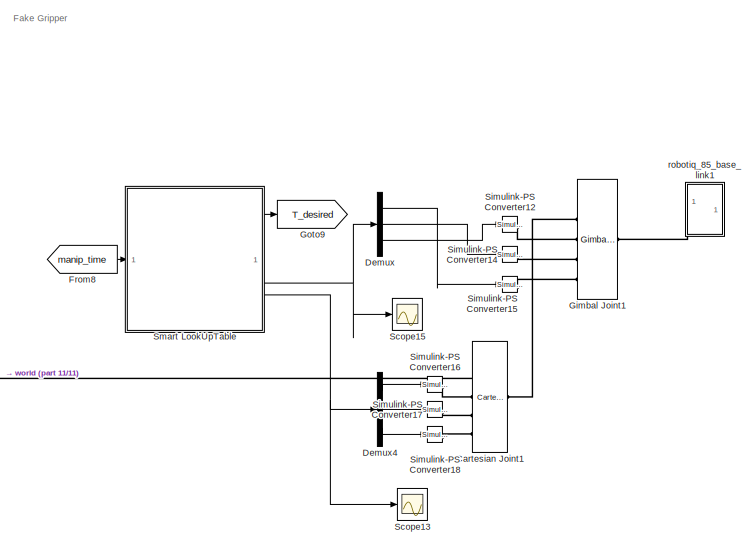
[diagram: root canvas - part 1/11, top center region]
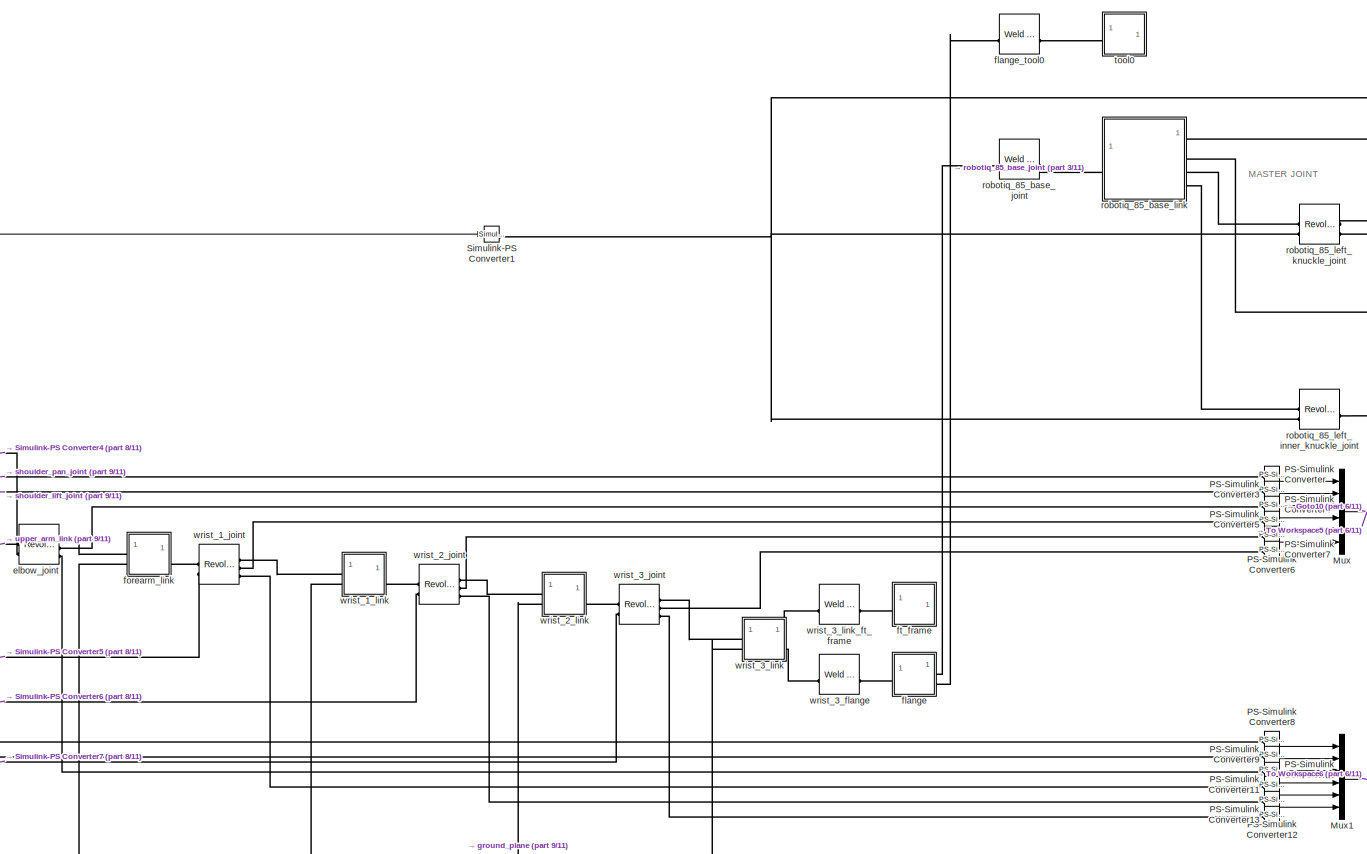
[diagram: root canvas - part 2/11, middle right region]
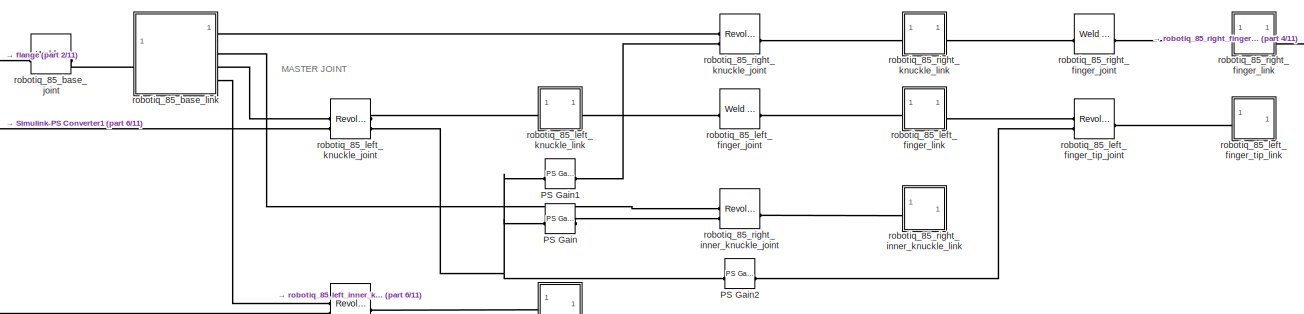
[diagram: root canvas - part 3/11, top right region]
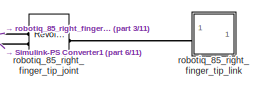
[diagram: root canvas - part 4/11, top right region]
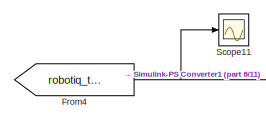
[diagram: root canvas - part 5/11, top left region]
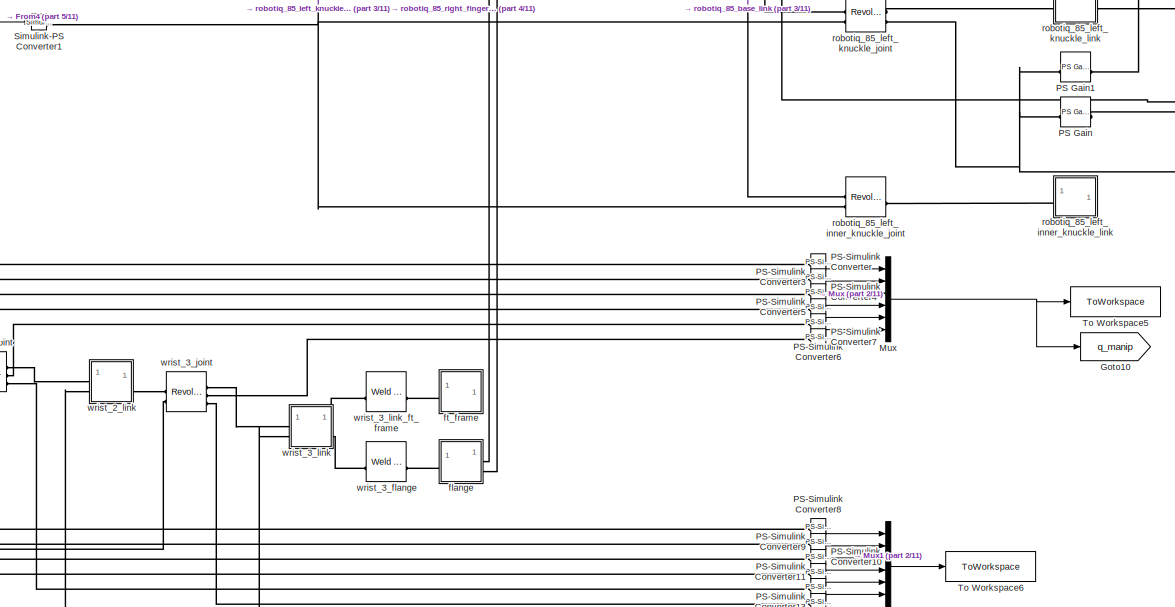
[diagram: root canvas - part 6/11, middle right region]
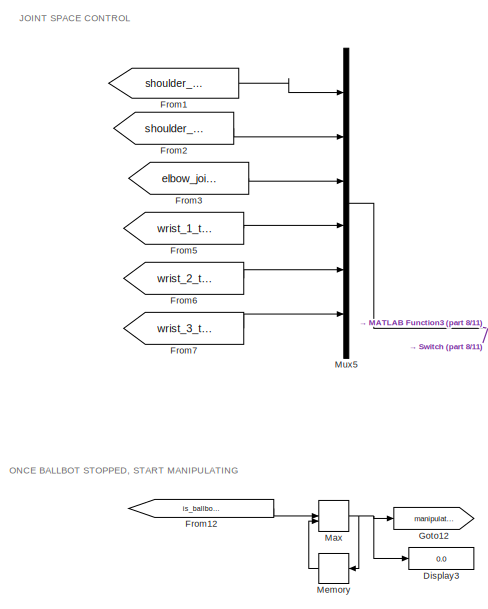
[diagram: root canvas - part 7/11, middle left region]
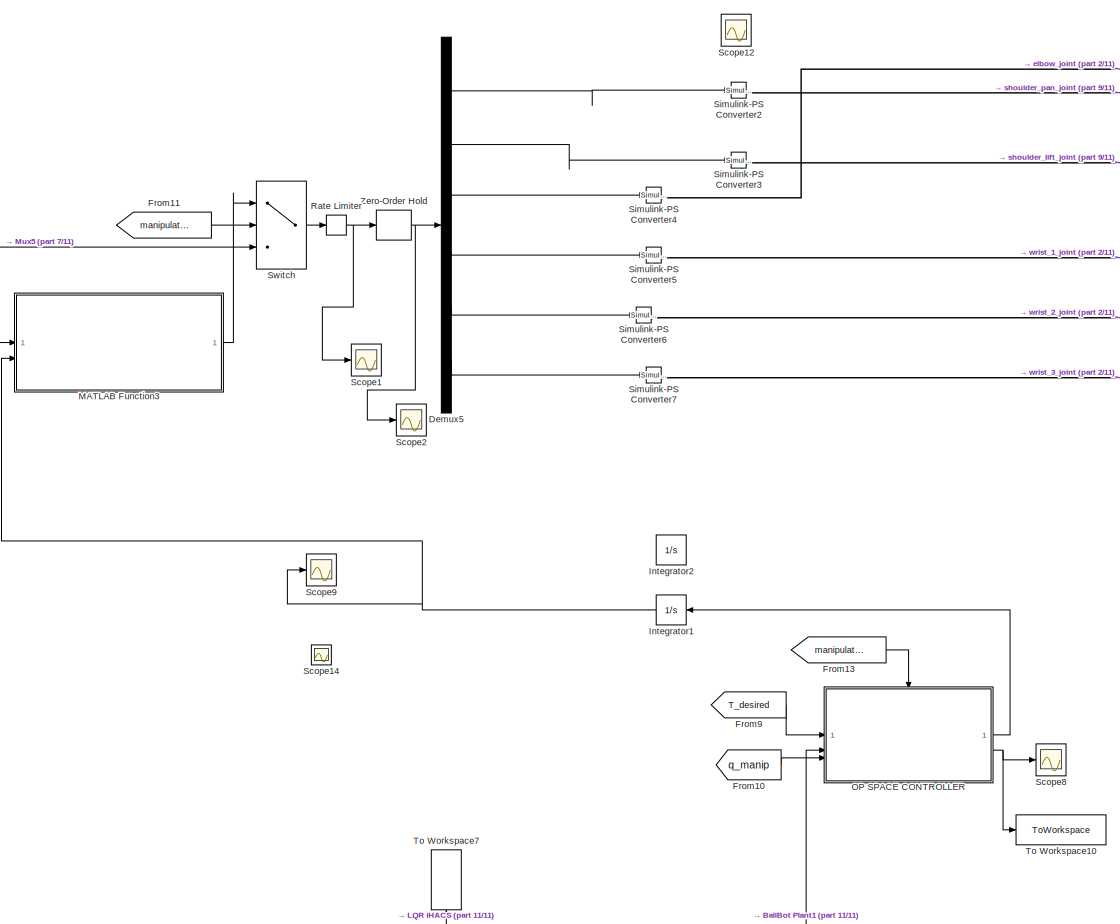
[diagram: root canvas - part 8/11, middle left region]
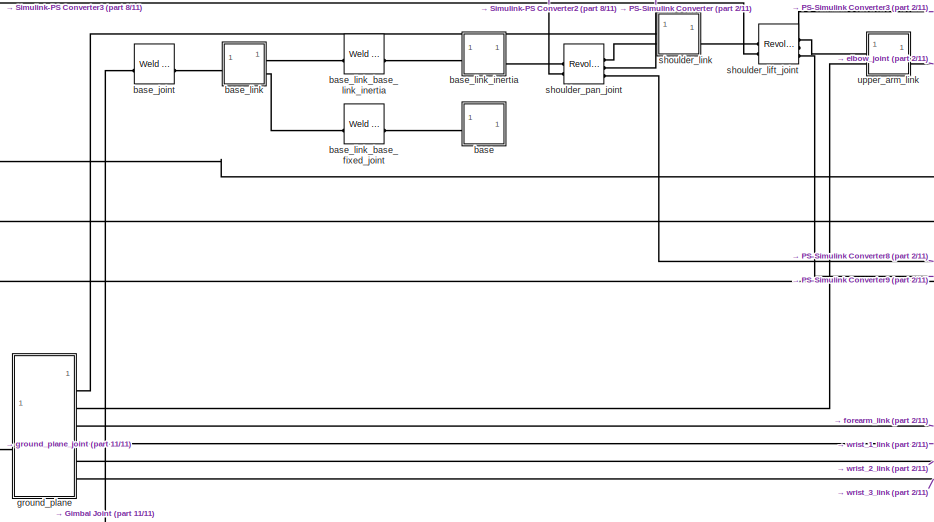
[diagram: root canvas - part 9/11, central region]
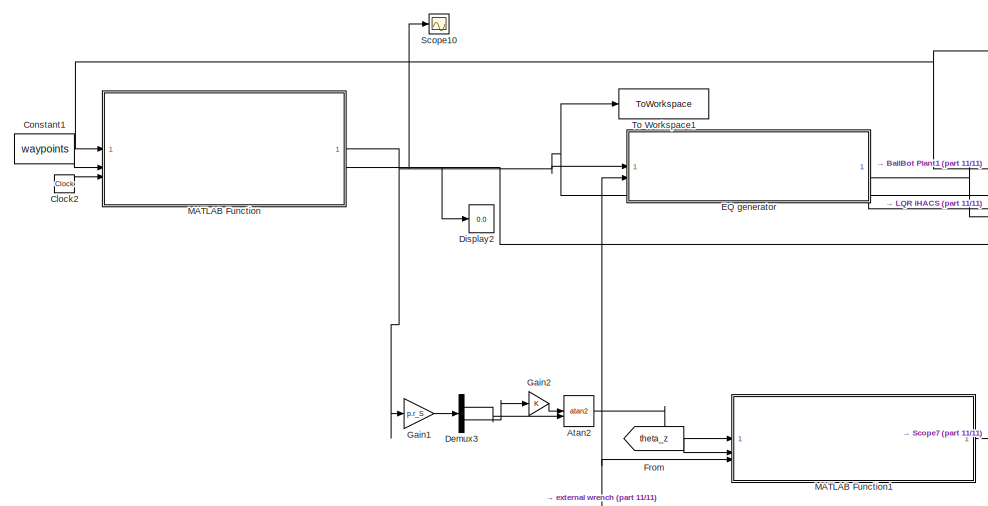
[diagram: root canvas - part 10/11, bottom left region]
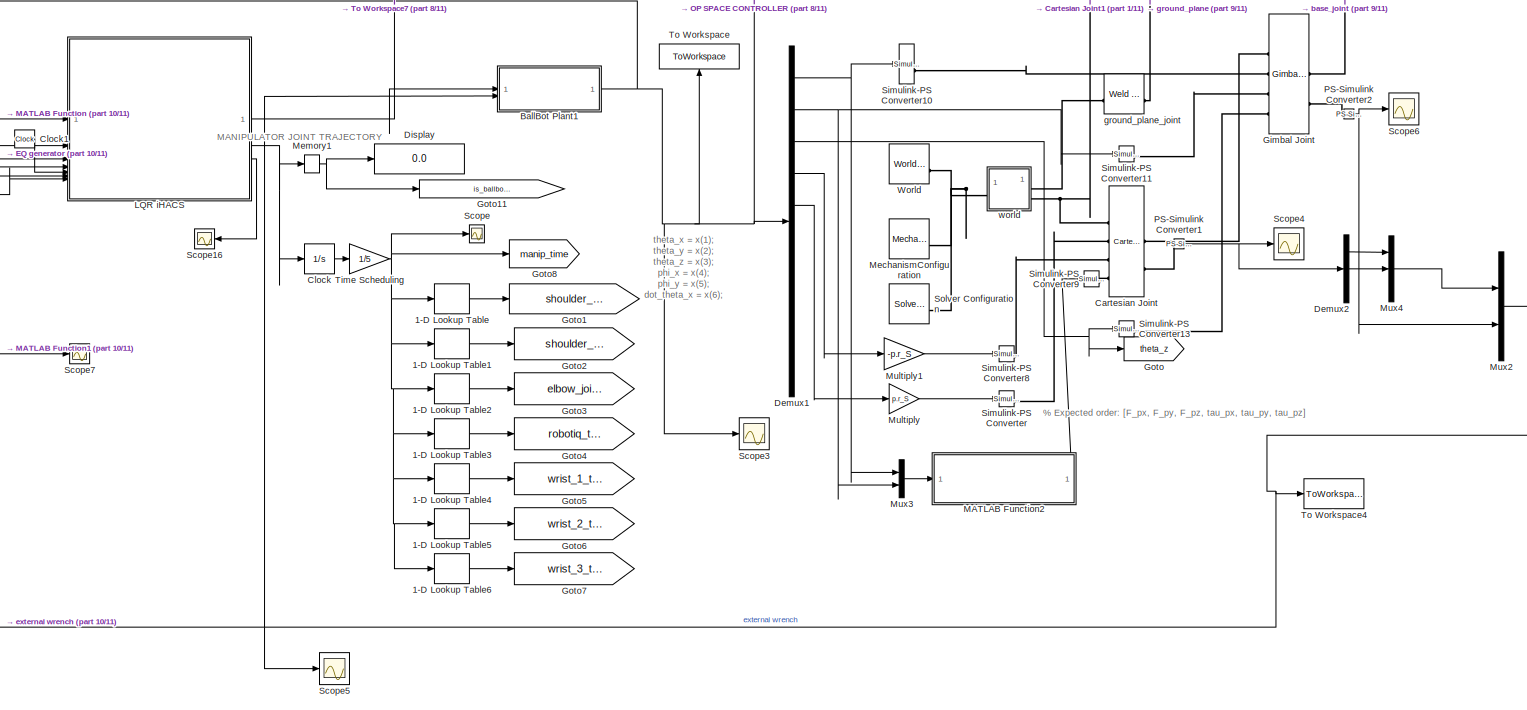
[diagram: root canvas - part 11/11, bottom left region]
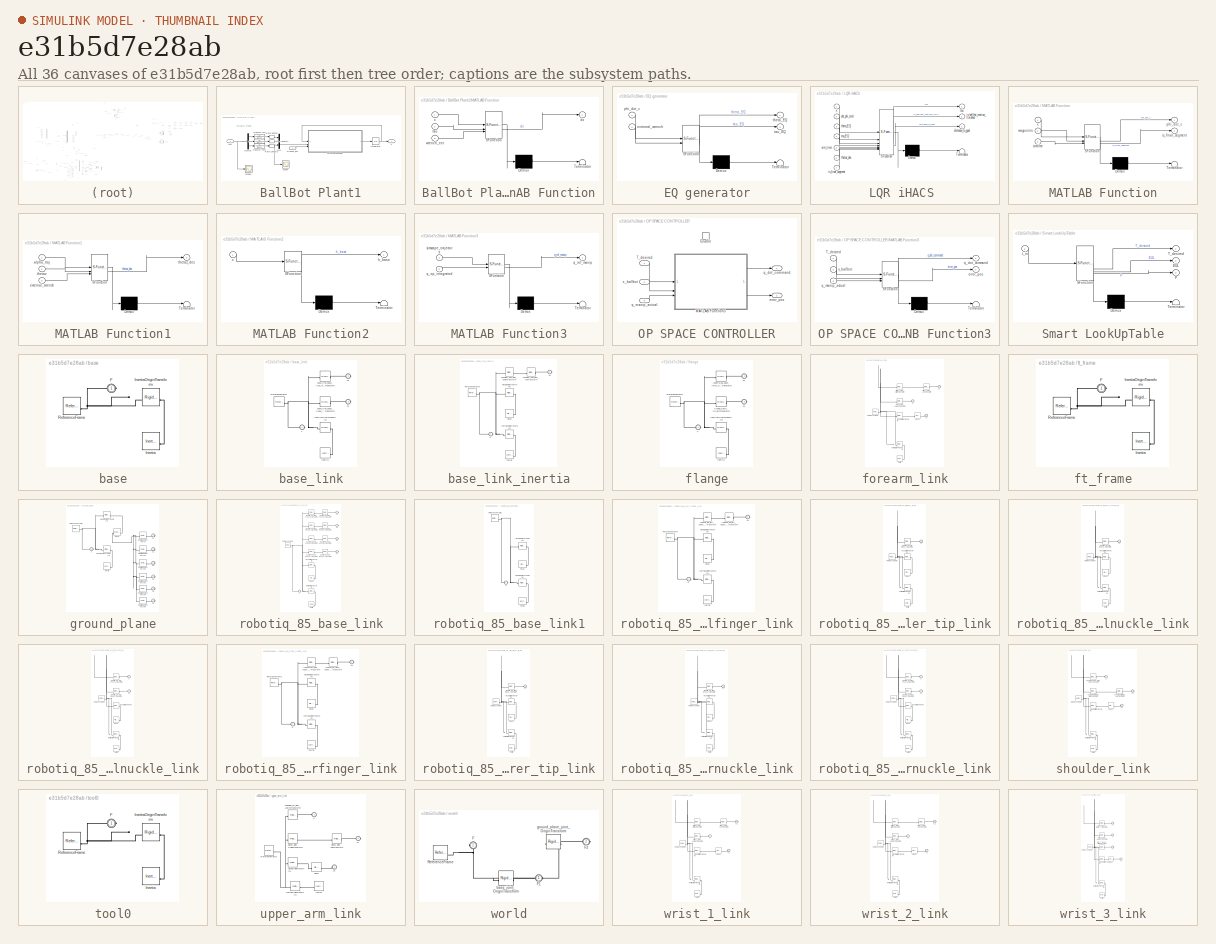
[diagram: thumbnail index - all 36 canvases of the model, root first then tree order]
MODEL slx_e31b5d7e28ab
KIND model
CONFIG AbsTol = auto
CONFIG EnableMultiTasking = off
CONFIG FixedStep = dt
CONFIG MaxStep = auto
CONFIG MinStep = auto
CONFIG RelTol = 1e-3
CONFIG SampleTimeConstraint = Unconstrained
CONFIG SolverName = ode3
CONFIG StartTime = 0.0
CONFIG StopTime = 40
BLOCK [Lookup_n-D] 1-D Lookup Table
  BreakpointsForDimension1 = manipulator_time_vector
  InputPortMap = u0
  InternalRulePriority = Speed
  NumberOfTableDimensions = 1
  RndMeth = Simplest
  Table = manipulator_position_data(:,1)
BLOCK [Lookup_n-D] 1-D Lookup Table1
  BreakpointsForDimension1 = manipulator_time_vector
  InputPortMap = u0
  InternalRulePriority = Speed
  NumberOfTableDimensions = 1
  RndMeth = Simplest
  Table = manipulator_position_data(:,2)
BLOCK [Lookup_n-D] 1-D Lookup Table2
  BreakpointsForDimension1 = manipulator_time_vector
  InputPortMap = u0
  InternalRulePriority = Speed
  NumberOfTableDimensions = 1
  RndMeth = Simplest
  Table = manipulator_position_data(:,3)
BLOCK [Lookup_n-D] 1-D Lookup Table3
  BreakpointsForDimension1 = manipulator_time_vector
  InputPortMap = u0
  InternalRulePriority = Speed
  NumberOfTableDimensions = 1
  RndMeth = Simplest
  Table = manipulator_position_data(:,4)
BLOCK [Lookup_n-D] 1-D Lookup Table4
  BreakpointsForDimension1 = manipulator_time_vector
  InputPortMap = u0
  InternalRulePriority = Speed
  NumberOfTableDimensions = 1
  RndMeth = Simplest
  Table = manipulator_position_data(:,5)
BLOCK [Lookup_n-D] 1-D Lookup Table5
  BreakpointsForDimension1 = manipulator_time_vector
  InputPortMap = u0
  InternalRulePriority = Speed
  NumberOfTableDimensions = 1
  RndMeth = Simplest
  Table = manipulator_position_data(:,6)
BLOCK [Lookup_n-D] 1-D Lookup Table6
  BreakpointsForDimension1 = manipulator_time_vector
  InputPortMap = u0
  InternalRulePriority = Speed
  NumberOfTableDimensions = 1
  RndMeth = Simplest
  Table = manipulator_position_data(:,7)
BLOCK [Trigonometry] Atan2
  Operator = atan2
BLOCK [SubSystem] BallBot Plant1
BLOCK [Demux] BallBot Plant1/Demux
  Outputs = 3
BLOCK [Integrator] BallBot Plant1/Integrator
  InitialCondition = x0(1:10)
BLOCK [SubSystem] BallBot Plant1/MATLAB Function
  ErrorFcn = Stateflow.Translate.translate
  PermitHierarchicalResolution = ExplicitOnly
  SFBlockType = MATLAB Function
  TreatAsAtomicUnit = on
BLOCK [Demux] BallBot Plant1/MATLAB Function/ Demux 
  Outputs = 1
BLOCK [S-Function] BallBot Plant1/MATLAB Function/ SFunction 
  EnableBusSupport = off
  FunctionName = sf_sfun
  Parameters = p
  PortCounts = [3 2]
  SFcnIsStateOwnerBlock = off
  SFunctionDeploymentMode = off
  Tag = Stateflow S-Function 4
BLOCK [Terminator] BallBot Plant1/MATLAB Function/ Terminator 
BLOCK [Outport] BallBot Plant1/MATLAB Function/dx
BLOCK [Inport] BallBot Plant1/MATLAB Function/tau
  Port = 2
BLOCK [Inport] BallBot Plant1/MATLAB Function/wrench_ext
  Port = 3
BLOCK [Inport] BallBot Plant1/MATLAB Function/x
BLOCK [Mux] BallBot Plant1/Mux
  DisplayOption = bar
  Inputs = 3
BLOCK [RateLimiter] BallBot Plant1/Rate Limiter
  FallingSlewLimit = -100
  RisingSlewLimit = 100
  SampleTimeMode = inherited
BLOCK [RateLimiter] BallBot Plant1/Rate Limiter1
  FallingSlewLimit = -100
  RisingSlewLimit = 100
  SampleTimeMode = inherited
BLOCK [RateLimiter] BallBot Plant1/Rate Limiter2
  FallingSlewLimit = -100
  RisingSlewLimit = 100
  SampleTimeMode = inherited
BLOCK [Scope] BallBot Plant1/Scope
  ActiveDisplayYMaximum = 1
  ActiveDisplayYMinimum = -1
  DataLoggingVariableName = ScopeData6
  Floating = off
  GraphicalSettings = {"Style":{"BackgroundColor":[0.12941176470588237,0.12941176470588237,0.12941176470588237],"AxesColor":[0.07058823529411765,0.07058823529411765,0.07058823529411765],"LabelsColor":[0.8509803921568627,0.8509803921568627,0.8509803921568627],"PreserveColors":false,"Visible":[true],"LineStyle":["-"],"LineWidth":[1.5],"BarWidth":[0.9],"LineColor":["auto"],"LineFaceAlpha":[1],"LineEdgeAlpha":[1],"Marker":...<+1914ch>
  MultipleDisplayCache = [{"MaxYLimMag":1,"MaxYLimReal":1,"MinYLimMag":0,"MinYLimReal":-1,"PlotAsMagnitudePhase":false,"ShowGrid":true,"ShowLegend":false,"Title":"%<SignalLabel>","YLabel":""}]
  NumInputPorts = 1
  ScopeFrameLocation = window
  WasSavedAsWebScope = on
  WindowPosition = [945.000000,200.000000,560.000000,420.000000,]
BLOCK [Scope] BallBot Plant1/Scope1
  ActiveDisplayYMaximum = 1.922382101002357
  ActiveDisplayYMinimum = -2.6901275366416426
  DataLoggingVariableName = ScopeData14
  Floating = off
  GraphicalSettings = {"AxesScalingProperties":{"AlignXAxis":"Center","AlignYAxis":"Center","AutoScaleXAxisLimits":false,"AxesScaling":"Manual","AxesScalingNumUpdates":10,"ExpandOnly":true,"ScaleAxesLimitsAtStop":false,"XAxisDataRange":100,"YAxisDataRange":80},"DisplayProperties":{"ColorOrder":["auto","auto","auto","auto","auto","auto","auto","auto","auto","auto","auto","auto","auto","auto","auto","auto","auto","auto",...<+2226ch>
  MultipleDisplayCache = [{"MaxYLimMag":323.61388635068943,"MaxYLimReal":1.922382101002357,"MinYLimMag":0,"MinYLimReal":-2.6901275366416426,"PlotAsMagnitudePhase":false,"ShowGrid":true,"ShowLegend":true,"Title":"%<SignalLabel>","YLabel":""}]
  NumInputPorts = 1
  ScopeFrameLocation = window
  ShowLegend = on
  WasSavedAsWebScope = on
  WindowPosition = [1000.000000,510.000000,560.000000,420.000000,]
BLOCK [TransferFcn] BallBot Plant1/Transfer Fcn
  Denominator = [0.01 1]
BLOCK [TransferFcn] BallBot Plant1/Transfer Fcn1
  Denominator = [0.01 1]
BLOCK [TransferFcn] BallBot Plant1/Transfer Fcn2
  Denominator = [0.01 1]
BLOCK [Inport] BallBot Plant1/tau
BLOCK [Inport] BallBot Plant1/wrench_ext
  Port = 2
BLOCK [Outport] BallBot Plant1/x
BLOCK [Reference] Cartesian Joint  REF=sm_lib/Joints/Cartesian
Joint
  SourceBlock = sm_lib/Joints/Cartesian\nJoint
  SourceType = Cartesian\nJoint
BLOCK [Reference] Cartesian Joint1  REF=sm_lib/Joints/Cartesian
Joint
  SourceBlock = sm_lib/Joints/Cartesian\nJoint
  SourceType = Cartesian\nJoint
BLOCK [Integrator] Clock
BLOCK [Clock] Clock1
BLOCK [Clock] Clock2
BLOCK [Constant] Constant1
  Value = waypoints
BLOCK [Demux] Demux
  Outputs = 3
BLOCK [Demux] Demux1
  Outputs = 10
BLOCK [Demux] Demux2
  Outputs = 3
BLOCK [Demux] Demux3
  Outputs = 2
BLOCK [Demux] Demux4
  Outputs = 3
BLOCK [Demux] Demux5
  Outputs = 6
BLOCK [Display] Display
  Decimation = 1
BLOCK [Display] Display2
  Decimation = 1
BLOCK [Display] Display3
  Decimation = 1
BLOCK [SubSystem] EQ generator
  ErrorFcn = Stateflow.Translate.translate
  PermitHierarchicalResolution = ExplicitOnly
  SFBlockType = MATLAB Function
  TreatAsAtomicUnit = on
BLOCK [Demux] EQ generator/ Demux 
  Outputs = 1
BLOCK [S-Function] EQ generator/ SFunction 
  EnableBusSupport = off
  FunctionName = sf_sfun
  Parameters = p
  PortCounts = [2 3]
  SFcnIsStateOwnerBlock = off
  SFunctionDeploymentMode = off
  Tag = Stateflow S-Function 1
BLOCK [Terminator] EQ generator/ Terminator 
BLOCK [Inport] EQ generator/external_wrench
  Port = 2
BLOCK [Inport] EQ generator/phi_dot_c
BLOCK [Outport] EQ generator/tau_EQ
  Port = 2
BLOCK [Outport] EQ generator/theta_EQ
BLOCK [From] From
  GotoTag = theta_z
BLOCK [From] From1
  GotoTag = shoulder_pan_traj
BLOCK [From] From10
  GotoTag = q_manip
BLOCK [From] From11
  GotoTag = manipulating
BLOCK [From] From12
  GotoTag = is_ballbot_motion_finished
BLOCK [From] From13
  GotoTag = manipulating
BLOCK [From] From2
  GotoTag = shoulder_lift_traj
BLOCK [From] From3
  GotoTag = elbow_joint_traj
BLOCK [From] From4
  GotoTag = robotiq_traj
BLOCK [From] From5
  GotoTag = wrist_1_traj
BLOCK [From] From6
  GotoTag = wrist_2_traj
BLOCK [From] From7
  GotoTag = wrist_3_traj
BLOCK [From] From8
  GotoTag = manip_time
BLOCK [From] From9
  GotoTag = T_desired
BLOCK [Gain] Gain1
  Gain = p.r_S
BLOCK [Gain] Gain2
BLOCK [Reference] Gimbal Joint  REF=sm_lib/Joints/Gimbal Joint
  SourceBlock = sm_lib/Joints/Gimbal Joint
  SourceType = Gimbal Joint
BLOCK [Reference] Gimbal Joint1  REF=sm_lib/Joints/Gimbal Joint
  SourceBlock = sm_lib/Joints/Gimbal Joint
  SourceType = Gimbal Joint
BLOCK [Goto] Goto
  GotoTag = theta_z
BLOCK [Goto] Goto1
  GotoTag = shoulder_pan_traj
BLOCK [Goto] Goto10
  GotoTag = q_manip
BLOCK [Goto] Goto11
  GotoTag = is_ballbot_motion_finished
BLOCK [Goto] Goto12
  GotoTag = manipulating
BLOCK [Goto] Goto2
  GotoTag = shoulder_lift_traj
BLOCK [Goto] Goto3
  GotoTag = elbow_joint_traj
BLOCK [Goto] Goto4
  GotoTag = robotiq_traj
BLOCK [Goto] Goto5
  GotoTag = wrist_1_traj
BLOCK [Goto] Goto6
  GotoTag = wrist_2_traj
BLOCK [Goto] Goto7
  GotoTag = wrist_3_traj
BLOCK [Goto] Goto8
  GotoTag = manip_time
BLOCK [Goto] Goto9
  GotoTag = T_desired
BLOCK [Integrator] Integrator1
  NameLocation = top
BLOCK [Integrator] Integrator2
  InitialCondition = [initial_positions_rad(1:3); initial_positions_rad(5:end)]
  NameLocation = top
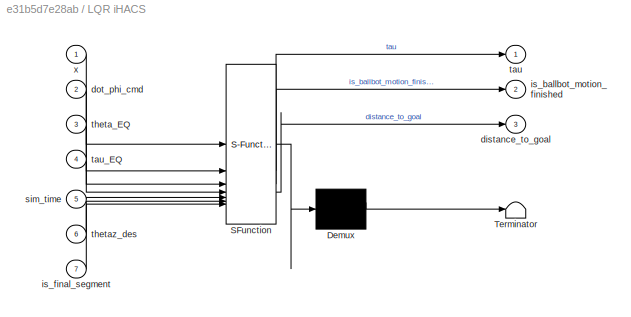
BLOCK [SubSystem] LQR iHACS 
  ErrorFcn = Stateflow.Translate.translate
  PermitHierarchicalResolution = ExplicitOnly
  SFBlockType = MATLAB Function
  TreatAsAtomicUnit = on
BLOCK [Demux] LQR iHACS / Demux 
  Outputs = 1
BLOCK [S-Function] LQR iHACS / SFunction 
  EnableBusSupport = off
  FunctionName = sf_sfun
  Parameters = control_params,dt,goal_pos,p
  PortCounts = [7 4]
  SFcnIsStateOwnerBlock = off
  SFunctionDeploymentMode = off
  Tag = Stateflow S-Function 2
BLOCK [Terminator] LQR iHACS / Terminator 
BLOCK [Outport] LQR iHACS /distance_to_goal
  Port = 3
BLOCK [Inport] LQR iHACS /dot_phi_cmd
  Port = 2
BLOCK [Outport] LQR iHACS /is_ballbot_motion_finished
  Port = 2
BLOCK [Inport] LQR iHACS /is_final_segment
  Port = 7
BLOCK [Inport] LQR iHACS /sim_time
  Port = 5
BLOCK [Outport] LQR iHACS /tau
BLOCK [Inport] LQR iHACS /tau_EQ
  Port = 4
BLOCK [Inport] LQR iHACS /theta_EQ
  Port = 3
BLOCK [Inport] LQR iHACS /thetaz_des
  Port = 6
BLOCK [Inport] LQR iHACS /x
BLOCK [SubSystem] MATLAB Function
  ErrorFcn = Stateflow.Translate.translate
  PermitHierarchicalResolution = ExplicitOnly
  SFBlockType = MATLAB Function
  TreatAsAtomicUnit = on
BLOCK [Demux] MATLAB Function/ Demux 
  Outputs = 1
BLOCK [S-Function] MATLAB Function/ SFunction 
  EnableBusSupport = off
  FunctionName = sf_sfun
  Parameters = control_params,dt,p
  PortCounts = [3 3]
  SFcnIsStateOwnerBlock = off
  SFunctionDeploymentMode = off
  Tag = Stateflow S-Function 5
BLOCK [Terminator] MATLAB Function/ Terminator 
BLOCK [Outport] MATLAB Function/is_final_segment
  Port = 2
BLOCK [Outport] MATLAB Function/phi_dot_c
BLOCK [Inport] MATLAB Function/simtime
  Port = 3
BLOCK [Inport] MATLAB Function/waypoints
  Port = 2
BLOCK [Inport] MATLAB Function/x
BLOCK [SubSystem] MATLAB Function1
  ErrorFcn = Stateflow.Translate.translate
  PermitHierarchicalResolution = ExplicitOnly
  SFBlockType = MATLAB Function
  TreatAsAtomicUnit = on
BLOCK [Demux] MATLAB Function1/ Demux 
  Outputs = 1
BLOCK [S-Function] MATLAB Function1/ SFunction 
  EnableBusSupport = off
  FunctionName = sf_sfun
  PortCounts = [3 2]
  SFcnIsStateOwnerBlock = off
  SFunctionDeploymentMode = off
  Tag = Stateflow S-Function 6
BLOCK [Terminator] MATLAB Function1/ Terminator 
BLOCK [Inport] MATLAB Function1/alpha_traj
BLOCK [Inport] MATLAB Function1/external_wrench
  Port = 3
BLOCK [Inport] MATLAB Function1/thetaz
  Port = 2
BLOCK [Outport] MATLAB Function1/thetaz_des
BLOCK [SubSystem] MATLAB Function2
  ErrorFcn = Stateflow.Translate.translate
  PermitHierarchicalResolution = ExplicitOnly
  SFBlockType = MATLAB Function
  TreatAsAtomicUnit = on
BLOCK [Demux] MATLAB Function2/ Demux 
  Outputs = 1
BLOCK [S-Function] MATLAB Function2/ SFunction 
  EnableBusSupport = off
  FunctionName = sf_sfun
  Parameters = p
  PortCounts = [1 2]
  SFcnIsStateOwnerBlock = off
  SFunctionDeploymentMode = off
  Tag = Stateflow S-Function 8
BLOCK [Terminator] MATLAB Function2/ Terminator 
BLOCK [Outport] MATLAB Function2/h_base
BLOCK [Inport] MATLAB Function2/x
BLOCK [SubSystem] MATLAB Function3
  ErrorFcn = Stateflow.Translate.translate
  PermitHierarchicalResolution = ExplicitOnly
  SFBlockType = MATLAB Function
  TreatAsAtomicUnit = on
BLOCK [Demux] MATLAB Function3/ Demux 
  Outputs = 1
BLOCK [S-Function] MATLAB Function3/ SFunction 
  EnableBusSupport = off
  FunctionName = sf_sfun
  Parameters = control_params
  PortCounts = [2 2]
  SFcnIsStateOwnerBlock = off
  SFunctionDeploymentMode = off
  Tag = Stateflow S-Function 3
BLOCK [Terminator] MATLAB Function3/ Terminator 
BLOCK [Inport] MATLAB Function3/q_op_integrated
  Port = 2
BLOCK [Outport] MATLAB Function3/q_ref_manip
BLOCK [Inport] MATLAB Function3/simscape_trajectory
BLOCK [MinMax] Max
  Function = max
  Inputs = 2
BLOCK [Reference] MechanismConfiguration  REF=sm_lib/Utilities/Mechanism
Configuration
  SourceBlock = sm_lib/Utilities/Mechanism\nConfiguration
  SourceType = Mechanism\nConfiguration
BLOCK [Memory] Memory
  NameLocation = top
BLOCK [Memory] Memory1
BLOCK [Gain] Multiply
  Gain = p.r_S
BLOCK [Gain] Multiply1
  Gain = -p.r_S
BLOCK [Mux] Mux
  DisplayOption = bar
  Inputs = 6
BLOCK [Mux] Mux1
  DisplayOption = bar
  Inputs = 6
BLOCK [Mux] Mux2
  DisplayOption = bar
  Inputs = 2
  NameLocation = right
BLOCK [Mux] Mux3
  DisplayOption = bar
  Inputs = 2
BLOCK [Mux] Mux4
  DisplayOption = bar
  Inputs = 3
BLOCK [Mux] Mux5
  DisplayOption = bar
  Inputs = 6
BLOCK [SubSystem] OP SPACE CONTROLLER
  TreatAsAtomicUnit = on
BLOCK [EnablePort] OP SPACE CONTROLLER/Enable
BLOCK [SubSystem] OP SPACE CONTROLLER/MATLAB Function3
  ErrorFcn = Stateflow.Translate.translate
  PermitHierarchicalResolution = ExplicitOnly
  SFBlockType = MATLAB Function
  TreatAsAtomicUnit = on
BLOCK [Demux] OP SPACE CONTROLLER/MATLAB Function3/ Demux 
  Outputs = 1
BLOCK [S-Function] OP SPACE CONTROLLER/MATLAB Function3/ SFunction 
  EnableBusSupport = off
  FunctionName = sf_sfun
  PortCounts = [3 3]
  SFcnIsStateOwnerBlock = off
  SFunctionDeploymentMode = off
  Tag = Stateflow S-Function 10
BLOCK [Terminator] OP SPACE CONTROLLER/MATLAB Function3/ Terminator 
BLOCK [Inport] OP SPACE CONTROLLER/MATLAB Function3/T_desired
BLOCK [Outport] OP SPACE CONTROLLER/MATLAB Function3/error_pos
  Port = 2
BLOCK [Outport] OP SPACE CONTROLLER/MATLAB Function3/q_dot_command
BLOCK [Inport] OP SPACE CONTROLLER/MATLAB Function3/q_manip_actual
  Port = 3
BLOCK [Inport] OP SPACE CONTROLLER/MATLAB Function3/x_ballbot
  Port = 2
BLOCK [Inport] OP SPACE CONTROLLER/T_desired
BLOCK [Outport] OP SPACE CONTROLLER/error_pos
  Port = 2
BLOCK [Outport] OP SPACE CONTROLLER/q_dot_command
BLOCK [Inport] OP SPACE CONTROLLER/q_manip_actual
  Port = 3
BLOCK [Inport] OP SPACE CONTROLLER/x_ballbot
  Port = 2
BLOCK [Reference] PS Gain  REF=fl_lib/Physical Signals/Functions/PS Gain
  SourceBlock = fl_lib/Physical Signals/Functions/PS Gain
  SourceType = PS Gain
BLOCK [Reference] PS Gain1  REF=fl_lib/Physical Signals/Functions/PS Gain
  SourceBlock = fl_lib/Physical Signals/Functions/PS Gain
  SourceType = PS Gain
BLOCK [Reference] PS Gain2  REF=fl_lib/Physical Signals/Functions/PS Gain
  SourceBlock = fl_lib/Physical Signals/Functions/PS Gain
  SourceType = PS Gain
BLOCK [Reference] PS-Simulink Converter  REF=nesl_utility/PS-Simulink
Converter
  SourceBlock = nesl_utility/PS-Simulink\nConverter
  SourceType = PS-Simulink\nConverter
BLOCK [Reference] PS-Simulink Converter1  REF=nesl_utility/PS-Simulink
Converter
  SourceBlock = nesl_utility/PS-Simulink\nConverter
  SourceType = PS-Simulink\nConverter
BLOCK [Reference] PS-Simulink Converter10  REF=nesl_utility/PS-Simulink
Converter
  SourceBlock = nesl_utility/PS-Simulink\nConverter
  SourceType = PS-Simulink\nConverter
BLOCK [Reference] PS-Simulink Converter11  REF=nesl_utility/PS-Simulink
Converter
  SourceBlock = nesl_utility/PS-Simulink\nConverter
  SourceType = PS-Simulink\nConverter
BLOCK [Reference] PS-Simulink Converter12  REF=nesl_utility/PS-Simulink
Converter
  SourceBlock = nesl_utility/PS-Simulink\nConverter
  SourceType = PS-Simulink\nConverter
BLOCK [Reference] PS-Simulink Converter13  REF=nesl_utility/PS-Simulink
Converter
  SourceBlock = nesl_utility/PS-Simulink\nConverter
  SourceType = PS-Simulink\nConverter
BLOCK [Reference] PS-Simulink Converter2  REF=nesl_utility/PS-Simulink
Converter
  SourceBlock = nesl_utility/PS-Simulink\nConverter
  SourceType = PS-Simulink\nConverter
BLOCK [Reference] PS-Simulink Converter3  REF=nesl_utility/PS-Simulink
Converter
  SourceBlock = nesl_utility/PS-Simulink\nConverter
  SourceType = PS-Simulink\nConverter
BLOCK [Reference] PS-Simulink Converter4  REF=nesl_utility/PS-Simulink
Converter
  SourceBlock = nesl_utility/PS-Simulink\nConverter
  SourceType = PS-Simulink\nConverter
BLOCK [Reference] PS-Simulink Converter5  REF=nesl_utility/PS-Simulink
Converter
  SourceBlock = nesl_utility/PS-Simulink\nConverter
  SourceType = PS-Simulink\nConverter
BLOCK [Reference] PS-Simulink Converter6  REF=nesl_utility/PS-Simulink
Converter
  SourceBlock = nesl_utility/PS-Simulink\nConverter
  SourceType = PS-Simulink\nConverter
BLOCK [Reference] PS-Simulink Converter7  REF=nesl_utility/PS-Simulink
Converter
  SourceBlock = nesl_utility/PS-Simulink\nConverter
  SourceType = PS-Simulink\nConverter
BLOCK [Reference] PS-Simulink Converter8  REF=nesl_utility/PS-Simulink
Converter
  SourceBlock = nesl_utility/PS-Simulink\nConverter
  SourceType = PS-Simulink\nConverter
BLOCK [Reference] PS-Simulink Converter9  REF=nesl_utility/PS-Simulink
Converter
  SourceBlock = nesl_utility/PS-Simulink\nConverter
  SourceType = PS-Simulink\nConverter
BLOCK [RateLimiter] Rate Limiter
  FallingSlewLimit = -pi/4
  RisingSlewLimit = pi/4
  SampleTimeMode = inherited
BLOCK [Scope] Scope
  ActiveDisplayYMaximum = 11.410031249998918
  ActiveDisplayYMinimum = -1.2677812499998795
  DataLoggingVariableName = ScopeData8
  Floating = off
  GraphicalSettings = {"Style":{"BackgroundColor":[0.12941176470588237,0.12941176470588237,0.12941176470588237],"AxesColor":[0.07058823529411765,0.07058823529411765,0.07058823529411765],"LabelsColor":[0.8509803921568627,0.8509803921568627,0.8509803921568627],"PreserveColors":false,"Visible":[true],"LineStyle":["-"],"LineWidth":[1.5],"BarWidth":[0.9],"LineColor":["auto"],"LineFaceAlpha":[1],"LineEdgeAlpha":[1],"Marker":...<+2015ch>
  MultipleDisplayCache = [{"MaxYLimMag":10,"MaxYLimReal":11.410031249998918,"MinYLimMag":0,"MinYLimReal":-1.2677812499998795,"PlotAsMagnitudePhase":false,"ShowGrid":true,"ShowLegend":false,"Title":"%<SignalLabel>","YLabel":""}]
  NumInputPorts = 1
  ScopeFrameLocation = window
  WasSavedAsWebScope = on
  WindowPosition = [1304.000000,554.000000,560.000000,420.000000,]
BLOCK [Scope] Scope1
  ActiveDisplayYMaximum = 2.9450000000090171
  ActiveDisplayYMinimum = -2.9450000000022034
  Floating = off
  GraphicalSettings = {"Style":{"BackgroundColor":[0.12941176470588237,0.12941176470588237,0.12941176470588237],"AxesColor":[0.07058823529411765,0.07058823529411765,0.07058823529411765],"LabelsColor":[0.8509803921568627,0.8509803921568627,0.8509803921568627],"PreserveColors":false,"Visible":[true,true,true,true,true,true],"LineStyle":["-","-","-","-","-","-"],"LineWidth":[1.5,1.5,1.5,1.5,1.5,1.5],"BarWidth":[0.9,0.9,0....<+2634ch>
  MultipleDisplayCache = [{"MaxYLimMag":2.9450000000090171,"MaxYLimReal":2.9450000000090171,"MinYLimMag":0,"MinYLimReal":-2.9450000000022034,"PlotAsMagnitudePhase":false,"ShowGrid":true,"ShowLegend":true,"Title":"%<SignalLabel>","YLabel":""}]
  NumInputPorts = 1
  ScopeFrameLocation = window
  ShowLegend = on
  WasSavedAsWebScope = on
  WindowPosition = [1000.000000,510.000000,560.000000,420.000000,]
BLOCK [Scope] Scope10
  ActiveDisplayYMaximum = 4.3656723860881055
  ActiveDisplayYMinimum = -4.3666855772379085
  DataLoggingVariableName = ScopeData7
  Floating = off
  GraphicalSettings = {"Style":{"BackgroundColor":[0.12941176470588237,0.12941176470588237,0.12941176470588237],"AxesColor":[0.07058823529411765,0.07058823529411765,0.07058823529411765],"LabelsColor":[0.8509803921568627,0.8509803921568627,0.8509803921568627],"PreserveColors":false,"Visible":[true,true],"LineStyle":["-","-"],"LineWidth":[1.5,1.5],"BarWidth":[0.9,0.9],"LineColor":["auto","auto"],"LineFaceAlpha":[1,1],"Li...<+2146ch>
  MultipleDisplayCache = [{"MaxYLimMag":4.3666855772379085,"MaxYLimReal":4.3656723860881055,"MinYLimMag":0,"MinYLimReal":-4.3666855772379085,"PlotAsMagnitudePhase":false,"ShowGrid":true,"ShowLegend":true,"Title":"%<SignalLabel>","YLabel":""}]
  NumInputPorts = 1
  ScopeFrameLocation = window
  ShowLegend = on
  WasSavedAsWebScope = on
  WindowPosition = [1000.000000,510.000000,560.000000,420.000000,]
BLOCK [Scope] Scope11
  ActiveDisplayYMaximum = 1
  ActiveDisplayYMinimum = -1
  DataLoggingVariableName = ScopeData9
  Floating = off
  GraphicalSettings = {"Style":{"BackgroundColor":[0.12941176470588237,0.12941176470588237,0.12941176470588237],"AxesColor":[0.07058823529411765,0.07058823529411765,0.07058823529411765],"LabelsColor":[0.8509803921568627,0.8509803921568627,0.8509803921568627],"PreserveColors":false,"Visible":[true],"LineStyle":["-"],"LineWidth":[1.5],"BarWidth":[0.9],"LineColor":["auto"],"LineFaceAlpha":[1],"LineEdgeAlpha":[1],"Marker":...<+2044ch>
  MultipleDisplayCache = [{"MaxYLimMag":1,"MaxYLimReal":1,"MinYLimMag":0,"MinYLimReal":-1,"PlotAsMagnitudePhase":false,"ShowGrid":true,"ShowLegend":false,"Title":"%<SignalLabel>","YLabel":""}]
  NumInputPorts = 1
  ScopeFrameLocation = window
  WasSavedAsWebScope = on
  WindowPosition = [1000.000000,510.000000,560.000000,420.000000,]
BLOCK [Scope] Scope12
  ActiveDisplayYMaximum = 0.00011022647756651233
  ActiveDisplayYMinimum = -0.00099203829809874034
  DataLoggingVariableName = ScopeData10
  Floating = off
  GraphicalSettings = {"Style":{"BackgroundColor":[0.12941176470588237,0.12941176470588237,0.12941176470588237],"AxesColor":[0.07058823529411765,0.07058823529411765,0.07058823529411765],"LabelsColor":[0.8509803921568627,0.8509803921568627,0.8509803921568627],"PreserveColors":false,"Visible":[true],"LineStyle":["-"],"LineWidth":[1.5],"BarWidth":[0.9],"LineColor":["auto"],"LineFaceAlpha":[1],"LineEdgeAlpha":[1],"Marker":...<+2037ch>
  MultipleDisplayCache = [{"MaxYLimMag":0.00099203829809874034,"MaxYLimReal":0.00011022647756651233,"MinYLimMag":0,"MinYLimReal":-0.00099203829809874034,"PlotAsMagnitudePhase":false,"ShowGrid":true,"ShowLegend":false,"Title":"%<SignalLabel>","YLabel":""}]
  NumInputPorts = 1
  ScopeFrameLocation = window
  WasSavedAsWebScope = on
  WindowPosition = [1000.000000,510.000000,560.000000,420.000000,]
BLOCK [Scope] Scope13
  ActiveDisplayYMaximum = 1
  ActiveDisplayYMinimum = -1
  DataLoggingVariableName = ScopeData12
  Floating = off
  GraphicalSettings = {"Style":{"BackgroundColor":[0.12941176470588237,0.12941176470588237,0.12941176470588237],"AxesColor":[0.07058823529411765,0.07058823529411765,0.07058823529411765],"LabelsColor":[0.8509803921568627,0.8509803921568627,0.8509803921568627],"PreserveColors":false,"Visible":[true,true,true],"LineStyle":["-","-","-"],"LineWidth":[1.5,1.5,1.5],"BarWidth":[0.9,0.9,0.9],"LineColor":["auto","auto","auto"],"...<+2209ch>
  MultipleDisplayCache = [{"MaxYLimMag":1,"MaxYLimReal":1,"MinYLimMag":0,"MinYLimReal":-1,"PlotAsMagnitudePhase":false,"ShowGrid":true,"ShowLegend":false,"Title":"%<SignalLabel>","YLabel":""}]
  NumInputPorts = 1
  ScopeFrameLocation = window
  WasSavedAsWebScope = on
  WindowPosition = [1000.000000,510.000000,560.000000,420.000000,]
BLOCK [Scope] Scope14
  ActiveDisplayYMaximum = 0.22785754944012135
  ActiveDisplayYMinimum = -1.1364286166044579
  Commented = on
  ContainerLayout = {"WindowBounds":[640,336,1280,768],"gridDimensions":{"w":1,"h":1},"tileCount":1,"tileCoverage":1,"columnWeights":1,"rowWeights":1,"tileOccupancy":{"children":[{"id":"/Scope2"},{"id":"/Scope3"},{"id":"/Scope4"},{"id":"/Scope6"},{"id":"/Scope8"},{"id":"/Scope9"}]}}  <repeated x3 — deduplicated; at blocks: Scope14, Scope4, Scope6>
  DataLoggingVariableName = ScopeData11
  Floating = off
  GraphicalSettings = {"Style":{"BackgroundColor":[0.12941176470588237,0.12941176470588237,0.12941176470588237],"AxesColor":[0.07058823529411765,0.07058823529411765,0.07058823529411765],"LabelsColor":[0.8509803921568627,0.8509803921568627,0.8509803921568627],"PreserveColors":false,"Visible":[true,true,true],"LineStyle":["-","-","-"],"LineWidth":[1.5,1.5,1.5],"BarWidth":[0.9,0.9,0.9],"LineColor":["auto","auto","auto"],"...<+2308ch>
  MultipleDisplayCache = [{"MaxYLimMag":1.1364286166044579,"MaxYLimReal":0.22785754944012135,"MinYLimMag":0,"MinYLimReal":-1.1364286166044579,"PlotAsMagnitudePhase":false,"ShowGrid":true,"ShowLegend":true,"Title":"%<SignalLabel>","YLabel":""}]
  NameLocation = right
  NumInputPorts = 1
  ScopeFrameLocation = container
  ShowLegend = on
  Visible = on
  WasSavedAsWebScope = on
  WindowPosition = [640.000000,336.000000,1280.000000,768.000000,]
BLOCK [Scope] Scope15
  ActiveDisplayYMaximum = 3.3115260057831919
  ActiveDisplayYMinimum = -2.0604095244493443
  DataLoggingVariableName = ScopeData13
  Floating = off
  GraphicalSettings = {"AxesScalingProperties":{"AlignXAxis":"Center","AlignYAxis":"Center","AutoScaleXAxisLimits":false,"AxesScaling":"Manual","AxesScalingNumUpdates":10,"ExpandOnly":true,"ScaleAxesLimitsAtStop":false,"XAxisDataRange":100,"YAxisDataRange":80},"DisplayProperties":{"ColorOrder":["auto","auto","auto","auto","auto","auto","auto","auto","auto","auto","auto","auto","auto","auto","auto","auto","auto","auto",...<+2238ch>
  MultipleDisplayCache = [{"MaxYLimMag":3.7328109617130902,"MaxYLimReal":3.3115260057831919,"MinYLimMag":0,"MinYLimReal":-2.0604095244493443,"PlotAsMagnitudePhase":false,"ShowGrid":true,"ShowLegend":false,"Title":"%<SignalLabel>","YLabel":""}]
  NumInputPorts = 1
  ScopeFrameLocation = window
  WasSavedAsWebScope = on
  WindowPosition = [1000.000000,510.000000,560.000000,420.000000,]
BLOCK [Scope] Scope16
  ActiveDisplayYMaximum = 23.429230361709052
  ActiveDisplayYMinimum = -125.120998436884
  DataLoggingVariableName = ScopeData16
  Floating = off
  GraphicalSettings = {"Style":{"BackgroundColor":[0.12941176470588237,0.12941176470588237,0.12941176470588237],"AxesColor":[0.07058823529411765,0.07058823529411765,0.07058823529411765],"LabelsColor":[0.8509803921568627,0.8509803921568627,0.8509803921568627],"PreserveColors":false,"Visible":[true],"LineStyle":["-"],"LineWidth":[1.5],"BarWidth":[0.9],"LineColor":["auto"],"LineFaceAlpha":[1],"LineEdgeAlpha":[1],"Marker":...<+2007ch>
  MultipleDisplayCache = [{"MaxYLimMag":125.120998436884,"MaxYLimReal":23.429230361709052,"MinYLimMag":0,"MinYLimReal":-125.120998436884,"PlotAsMagnitudePhase":false,"ShowGrid":true,"ShowLegend":true,"Title":"%<SignalLabel>","YLabel":""}]
  NameLocation = top
  NumInputPorts = 1
  ScopeFrameLocation = window
  ShowLegend = on
  WasSavedAsWebScope = on
  WindowPosition = [1000.000000,510.000000,560.000000,420.000000,]
BLOCK [Scope] Scope2
  ActiveDisplayYMaximum = 3.497271000497209
  ActiveDisplayYMinimum = -3.4854390043959516
  DataLoggingVariableName = ScopeData1
  Floating = off
  GraphicalSettings = {"Style":{"BackgroundColor":[0.12941176470588237,0.12941176470588237,0.12941176470588237],"AxesColor":[0.07058823529411765,0.07058823529411765,0.07058823529411765],"LabelsColor":[0.8509803921568627,0.8509803921568627,0.8509803921568627],"PreserveColors":false,"Visible":[true,true,true,true,true,true],"LineStyle":["-","-","-","-","-","-"],"LineWidth":[1.5,1.5,1.5,1.5,1.5,1.5],"BarWidth":[0.9,0.9,0....<+2672ch>
  MultipleDisplayCache = [{"MaxYLimMag":3.497271000497209,"MaxYLimReal":3.497271000497209,"MinYLimMag":0,"MinYLimReal":-3.4854390043959516,"PlotAsMagnitudePhase":false,"ShowGrid":true,"ShowLegend":false,"Title":"%<SignalLabel>","YLabel":""}]
  NumInputPorts = 1
  ScopeFrameLocation = window
  WasSavedAsWebScope = on
  WindowPosition = [1000.000000,510.000000,560.000000,420.000000,]
BLOCK [Scope] Scope3
  ActiveDisplayYMaximum = 0.14645408892462938
  ActiveDisplayYMinimum = -0.037805717806558614
  DataLoggingVariableName = ScopeData2
  Floating = off
  GraphicalSettings = {"AxesScalingProperties":{"AlignXAxis":"Center","AlignYAxis":"Center","AutoScaleXAxisLimits":false,"AxesScaling":"Manual","AxesScalingNumUpdates":10,"ExpandOnly":true,"ScaleAxesLimitsAtStop":false,"XAxisDataRange":100,"YAxisDataRange":80},"DisplayProperties":{"ColorOrder":["auto","auto","auto","auto","auto","auto","auto","auto","auto","auto","auto","auto","auto","auto","auto","auto","auto","auto",...<+3204ch>
  MultipleDisplayCache = [{"MaxYLimMag":1.5512972511593293,"MaxYLimReal":0.14645408892462938,"MinYLimMag":0,"MinYLimReal":-0.037805717806558614,"PlotAsMagnitudePhase":false,"ShowGrid":true,"ShowLegend":true,"Title":"%<SignalLabel>","YLabel":""}]
  NumInputPorts = 1
  ScopeFrameLocation = window
  ShowLegend = on
  WasSavedAsWebScope = on
  WindowPosition = [1833.000000,232.000000,560.000000,420.000000,]
BLOCK [Scope] Scope4
  ActiveDisplayYMaximum = 329.02280832847254
  ActiveDisplayYMinimum = -268.72143096974315
  DataLoggingVariableName = ScopeData19
  Floating = off
  GraphicalSettings = {"Style":{"BackgroundColor":[0.12941176470588237,0.12941176470588237,0.12941176470588237],"AxesColor":[0.07058823529411765,0.07058823529411765,0.07058823529411765],"LabelsColor":[0.8509803921568627,0.8509803921568627,0.8509803921568627],"PreserveColors":false,"Visible":[true,true,true],"LineStyle":["-","-","-"],"LineWidth":[1.5,1.5,1.5],"BarWidth":[0.9,0.9,0.9],"LineColor":["auto","auto","auto"],"...<+2328ch>
  MultipleDisplayCache = [{"MaxYLimMag":333.90715597855456,"MaxYLimReal":329.02280832847254,"MinYLimMag":0,"MinYLimReal":-268.72143096974315,"PlotAsMagnitudePhase":false,"ShowGrid":true,"ShowLegend":true,"Title":"%<SignalLabel>","YLabel":""}]
  NumInputPorts = 1
  ScopeFrameLocation = container
  ShowLegend = on
  Visible = on
  WasSavedAsWebScope = on
  WindowPosition = [640.000000,336.000000,1280.000000,768.000000,]
BLOCK [Scope] Scope5
  ActiveDisplayYMaximum = 8818.0633102887077
  ActiveDisplayYMinimum = -13667.618952101315
  DataLoggingVariableName = ScopeData4
  Floating = off
  GraphicalSettings = {"Style":{"BackgroundColor":[0.12941176470588237,0.12941176470588237,0.12941176470588237],"AxesColor":[0.07058823529411765,0.07058823529411765,0.07058823529411765],"LabelsColor":[0.8509803921568627,0.8509803921568627,0.8509803921568627],"PreserveColors":false,"Visible":[true,true,true,true,true,true],"LineStyle":["-","-","-","-","-","-"],"LineWidth":[1.5,1.5,1.5,1.5,1.5,1.5],"BarWidth":[0.9,0.9,0....<+2668ch>
  MultipleDisplayCache = [{"MaxYLimMag":75972.900835730223,"MaxYLimReal":8818.0633102887077,"MinYLimMag":0,"MinYLimReal":-13667.618952101315,"PlotAsMagnitudePhase":false,"ShowGrid":true,"ShowLegend":true,"Title":"%<SignalLabel>","YLabel":""}]
  NumInputPorts = 1
  ScopeFrameLocation = window
  ShowLegend = on
  WasSavedAsWebScope = on
  WindowPosition = [1322.000000,491.000000,560.000000,420.000000,]
BLOCK [Scope] Scope6
  ActiveDisplayYMaximum = 40.294538035365044
  ActiveDisplayYMinimum = -20.564846798657925
  DataLoggingVariableName = ScopeData21
  Floating = off
  GraphicalSettings = {"Style":{"BackgroundColor":[0.12941176470588237,0.12941176470588237,0.12941176470588237],"AxesColor":[0.07058823529411765,0.07058823529411765,0.07058823529411765],"LabelsColor":[0.8509803921568627,0.8509803921568627,0.8509803921568627],"PreserveColors":false,"Visible":[true,true,true],"LineStyle":["-","-","-"],"LineWidth":[1.5,1.5,1.5],"BarWidth":[0.9,0.9,0.9],"LineColor":["auto","auto","auto"],"...<+2324ch>
  MultipleDisplayCache = [{"MaxYLimMag":40.294538035365044,"MaxYLimReal":40.294538035365044,"MinYLimMag":0,"MinYLimReal":-20.564846798657925,"PlotAsMagnitudePhase":false,"ShowGrid":true,"ShowLegend":true,"Title":"%<SignalLabel>","YLabel":""}]
  NumInputPorts = 1
  ScopeFrameLocation = container
  ShowLegend = on
  Visible = on
  WasSavedAsWebScope = on
  WindowPosition = [640.000000,336.000000,1280.000000,768.000000,]
BLOCK [Scope] Scope7
  ActiveDisplayYMaximum = 23.429230361709052
  ActiveDisplayYMinimum = -125.120998436884
  DataLoggingVariableName = ScopeData5
  Floating = off
  GraphicalSettings = {"Style":{"BackgroundColor":[0.12941176470588237,0.12941176470588237,0.12941176470588237],"AxesColor":[0.07058823529411765,0.07058823529411765,0.07058823529411765],"LabelsColor":[0.8509803921568627,0.8509803921568627,0.8509803921568627],"PreserveColors":false,"Visible":[true],"LineStyle":["-"],"LineWidth":[1.5],"BarWidth":[0.9],"LineColor":["auto"],"LineFaceAlpha":[1],"LineEdgeAlpha":[1],"Marker":...<+2007ch>
  MultipleDisplayCache = [{"MaxYLimMag":125.120998436884,"MaxYLimReal":23.429230361709052,"MinYLimMag":0,"MinYLimReal":-125.120998436884,"PlotAsMagnitudePhase":false,"ShowGrid":true,"ShowLegend":true,"Title":"%<SignalLabel>","YLabel":""}]
  NumInputPorts = 1
  ScopeFrameLocation = window
  ShowLegend = on
  WasSavedAsWebScope = on
  WindowPosition = [1000.000000,510.000000,560.000000,420.000000,]
BLOCK [Scope] Scope8
  ActiveDisplayYMaximum = 1
  ActiveDisplayYMinimum = -1
  DataLoggingVariableName = ScopeData3
  Floating = off
  GraphicalSettings = {"Style":{"BackgroundColor":[0.12941176470588237,0.12941176470588237,0.12941176470588237],"AxesColor":[0.07058823529411765,0.07058823529411765,0.07058823529411765],"LabelsColor":[0.8509803921568627,0.8509803921568627,0.8509803921568627],"PreserveColors":false,"Visible":[true,true,true],"LineStyle":["-","-","-"],"LineWidth":[1.5,1.5,1.5],"BarWidth":[0.9,0.9,0.9],"LineColor":["auto","auto","auto"],"...<+2268ch>
  MultipleDisplayCache = [{"MaxYLimMag":1,"MaxYLimReal":1,"MinYLimMag":0,"MinYLimReal":-1,"PlotAsMagnitudePhase":false,"ShowGrid":true,"ShowLegend":true,"Title":"%<SignalLabel>","YLabel":""}]
  NumInputPorts = 1
  ScopeFrameLocation = window
  ShowLegend = on
  WasSavedAsWebScope = on
  WindowPosition = [1768.000000,509.000000,560.000000,420.000000,]
BLOCK [Scope] Scope9
  ActiveDisplayYMaximum = 3702.8683160601759
  ActiveDisplayYMinimum = -2776.5988074005618
  DataLoggingVariableName = ScopeData15
  Floating = off
  GraphicalSettings = {"AxesScalingProperties":{"AlignXAxis":"Center","AlignYAxis":"Center","AutoScaleXAxisLimits":false,"AxesScaling":"Manual","AxesScalingNumUpdates":10,"ExpandOnly":true,"ScaleAxesLimitsAtStop":false,"XAxisDataRange":100,"YAxisDataRange":80},"DisplayProperties":{"ColorOrder":["auto","auto","auto","auto","auto","auto","auto","auto","auto","auto","auto","auto","auto","auto","auto","auto","auto","auto",...<+2533ch>
  MultipleDisplayCache = [{"MaxYLimMag":29662.660968291173,"MaxYLimReal":3702.8683160601759,"MinYLimMag":0,"MinYLimReal":-2776.5988074005618,"PlotAsMagnitudePhase":false,"ShowGrid":true,"ShowLegend":false,"Title":"%<SignalLabel>","YLabel":""}]
  NumInputPorts = 1
  ScopeFrameLocation = window
  WasSavedAsWebScope = on
  WindowPosition = [1000.000000,510.000000,560.000000,420.000000,]
BLOCK [Reference] Simulink-PS Converter  REF=nesl_utility/Simulink-PS
Converter
  SourceBlock = nesl_utility/Simulink-PS\nConverter
  SourceType = Simulink-PS\nConverter
BLOCK [Reference] Simulink-PS Converter1  REF=nesl_utility/Simulink-PS
Converter
  SourceBlock = nesl_utility/Simulink-PS\nConverter
  SourceType = Simulink-PS\nConverter
BLOCK [Reference] Simulink-PS Converter10  REF=nesl_utility/Simulink-PS
Converter
  SourceBlock = nesl_utility/Simulink-PS\nConverter
  SourceType = Simulink-PS\nConverter
BLOCK [Reference] Simulink-PS Converter11  REF=nesl_utility/Simulink-PS
Converter
  SourceBlock = nesl_utility/Simulink-PS\nConverter
  SourceType = Simulink-PS\nConverter
BLOCK [Reference] Simulink-PS Converter12  REF=nesl_utility/Simulink-PS
Converter
  SourceBlock = nesl_utility/Simulink-PS\nConverter
  SourceType = Simulink-PS\nConverter
BLOCK [Reference] Simulink-PS Converter13  REF=nesl_utility/Simulink-PS
Converter
  SourceBlock = nesl_utility/Simulink-PS\nConverter
  SourceType = Simulink-PS\nConverter
BLOCK [Reference] Simulink-PS Converter14  REF=nesl_utility/Simulink-PS
Converter
  SourceBlock = nesl_utility/Simulink-PS\nConverter
  SourceType = Simulink-PS\nConverter
BLOCK [Reference] Simulink-PS Converter15  REF=nesl_utility/Simulink-PS
Converter
  SourceBlock = nesl_utility/Simulink-PS\nConverter
  SourceType = Simulink-PS\nConverter
BLOCK [Reference] Simulink-PS Converter16  REF=nesl_utility/Simulink-PS
Converter
  SourceBlock = nesl_utility/Simulink-PS\nConverter
  SourceType = Simulink-PS\nConverter
BLOCK [Reference] Simulink-PS Converter17  REF=nesl_utility/Simulink-PS
Converter
  SourceBlock = nesl_utility/Simulink-PS\nConverter
  SourceType = Simulink-PS\nConverter
BLOCK [Reference] Simulink-PS Converter18  REF=nesl_utility/Simulink-PS
Converter
  SourceBlock = nesl_utility/Simulink-PS\nConverter
  SourceType = Simulink-PS\nConverter
BLOCK [Reference] Simulink-PS Converter2  REF=nesl_utility/Simulink-PS
Converter
  SourceBlock = nesl_utility/Simulink-PS\nConverter
  SourceType = Simulink-PS\nConverter
BLOCK [Reference] Simulink-PS Converter3  REF=nesl_utility/Simulink-PS
Converter
  SourceBlock = nesl_utility/Simulink-PS\nConverter
  SourceType = Simulink-PS\nConverter
BLOCK [Reference] Simulink-PS Converter4  REF=nesl_utility/Simulink-PS
Converter
  SourceBlock = nesl_utility/Simulink-PS\nConverter
  SourceType = Simulink-PS\nConverter
BLOCK [Reference] Simulink-PS Converter5  REF=nesl_utility/Simulink-PS
Converter
  SourceBlock = nesl_utility/Simulink-PS\nConverter
  SourceType = Simulink-PS\nConverter
BLOCK [Reference] Simulink-PS Converter6  REF=nesl_utility/Simulink-PS
Converter
  SourceBlock = nesl_utility/Simulink-PS\nConverter
  SourceType = Simulink-PS\nConverter
BLOCK [Reference] Simulink-PS Converter7  REF=nesl_utility/Simulink-PS
Converter
  SourceBlock = nesl_utility/Simulink-PS\nConverter
  SourceType = Simulink-PS\nConverter
BLOCK [Reference] Simulink-PS Converter8  REF=nesl_utility/Simulink-PS
Converter
  SourceBlock = nesl_utility/Simulink-PS\nConverter
  SourceType = Simulink-PS\nConverter
BLOCK [Reference] Simulink-PS Converter9  REF=nesl_utility/Simulink-PS
Converter
  SourceBlock = nesl_utility/Simulink-PS\nConverter
  SourceType = Simulink-PS\nConverter
BLOCK [SubSystem] Smart LookUpTable
  ErrorFcn = Stateflow.Translate.translate
  PermitHierarchicalResolution = ExplicitOnly
  SFBlockType = MATLAB Function
  TreatAsAtomicUnit = on
BLOCK [Demux] Smart LookUpTable/ Demux 
  Outputs = 1
BLOCK [S-Function] Smart LookUpTable/ SFunction 
  EnableBusSupport = off
  FunctionName = sf_sfun
  Parameters = manipulator_time_vector,op_space_pose_trajectory
  PortCounts = [1 4]
  SFcnIsStateOwnerBlock = off
  SFunctionDeploymentMode = off
  Tag = Stateflow S-Function 7
BLOCK [Terminator] Smart LookUpTable/ Terminator 
BLOCK [Outport] Smart LookUpTable/EUL
  Port = 2
BLOCK [Outport] Smart LookUpTable/P
  Port = 3
BLOCK [Outport] Smart LookUpTable/T_desired
BLOCK [Inport] Smart LookUpTable/t_in
BLOCK [Reference] Solver Configuration  REF=nesl_utility/Solver
Configuration
  SourceBlock = nesl_utility/Solver\nConfiguration
  SourceType = Solver\nConfiguration
BLOCK [Switch] Switch
  Criteria = u2 > Threshold
  InputSameDT = off
  SaturateOnIntegerOverflow = off
BLOCK [Gain] Time Scheduling
  Gain = 1/5
BLOCK [ToWorkspace] To Workspace
  FixptAsFi = on
  MaxDataPoints = inf
  NameLocation = right
  SampleTime = -1
  SaveFormat = Timeseries
  VariableName = x_sim
BLOCK [ToWorkspace] To Workspace1
  FixptAsFi = on
  MaxDataPoints = inf
  SampleTime = -1
  SaveFormat = Timeseries
  VariableName = phi_dot_c
BLOCK [ToWorkspace] To Workspace10
  FixptAsFi = on
  MaxDataPoints = inf
  SampleTime = -1
  SaveFormat = Timeseries
  VariableName = ErrorPos
BLOCK [ToWorkspace] To Workspace4
  FixptAsFi = on
  MaxDataPoints = inf
  SampleTime = -1
  SaveFormat = Timeseries
  VariableName = ex_wrench
BLOCK [ToWorkspace] To Workspace5
  FixptAsFi = on
  MaxDataPoints = inf
  SampleTime = -1
  SaveFormat = Timeseries
  VariableName = q
BLOCK [ToWorkspace] To Workspace6
  FixptAsFi = on
  MaxDataPoints = inf
  SampleTime = -1
  SaveFormat = Timeseries
  VariableName = dot_q
BLOCK [ToWorkspace] To Workspace7
  FixptAsFi = on
  MaxDataPoints = inf
  NameLocation = right
  SampleTime = -1
  SaveFormat = Timeseries
  VariableName = tau_sim
BLOCK [Reference] World  REF=sm_lib/Frames and
Transforms/World Frame
  SourceBlock = sm_lib/Frames and\nTransforms/World Frame
  SourceType = World Frame
BLOCK [ZeroOrderHold] Zero-Order Hold
  SampleTime = -1
BLOCK [SubSystem] base
BLOCK [PMIOPort] base/F
  Side = Left
BLOCK [Reference] base/Inertia  REF=sm_lib/Body Elements/Inertia
  SourceBlock = sm_lib/Body Elements/Inertia
  SourceType = Inertia
BLOCK [Reference] base/InertiaOriginTransform  REF=sm_lib/Frames and
Transforms/Rigid
Transform
  SourceBlock = sm_lib/Frames and\nTransforms/Rigid\nTransform
  SourceType = Rigid\nTransform
BLOCK [Reference] base/ReferenceFrame  REF=sm_lib/Frames and
Transforms/Reference
Frame
  SourceBlock = sm_lib/Frames and\nTransforms/Reference\nFrame
  SourceType = Reference\nFrame
BLOCK [Reference] base_joint  REF=sm_lib/Joints/Weld Joint
  SourceBlock = sm_lib/Joints/Weld Joint
  SourceType = Weld Joint
BLOCK [SubSystem] base_link
BLOCK [PMIOPort] base_link/F
  Side = Left
BLOCK [PMIOPort] base_link/F1
  Port = 3
  Side = Right
BLOCK [PMIOPort] base_link/F2
  Port = 2
  Side = Right
BLOCK [Reference] base_link/Inertia  REF=sm_lib/Body Elements/Inertia
  SourceBlock = sm_lib/Body Elements/Inertia
  SourceType = Inertia
BLOCK [Reference] base_link/InertiaOriginTransform  REF=sm_lib/Frames and
Transforms/Rigid
Transform
  SourceBlock = sm_lib/Frames and\nTransforms/Rigid\nTransform
  SourceType = Rigid\nTransform
BLOCK [Reference] base_link/ReferenceFrame  REF=sm_lib/Frames and
Transforms/Reference
Frame
  SourceBlock = sm_lib/Frames and\nTransforms/Reference\nFrame
  SourceType = Reference\nFrame
BLOCK [Reference] base_link/base_link_base_fixed_joint_OriginTransform  REF=sm_lib/Frames and
Transforms/Rigid
Transform
  SourceBlock = sm_lib/Frames and\nTransforms/Rigid\nTransform
  SourceType = Rigid\nTransform
BLOCK [Reference] base_link/base_link_base_link_inertia_OriginTransform  REF=sm_lib/Frames and
Transforms/Rigid
Transform
  SourceBlock = sm_lib/Frames and\nTransforms/Rigid\nTransform
  SourceType = Rigid\nTransform
BLOCK [Reference] base_link_base_fixed_joint  REF=sm_lib/Joints/Weld Joint
  SourceBlock = sm_lib/Joints/Weld Joint
  SourceType = Weld Joint
BLOCK [Reference] base_link_base_link_inertia  REF=sm_lib/Joints/Weld Joint
  SourceBlock = sm_lib/Joints/Weld Joint
  SourceType = Weld Joint
BLOCK [SubSystem] base_link_inertia
BLOCK [PMIOPort] base_link_inertia/F
  Side = Left
BLOCK [PMIOPort] base_link_inertia/F1
  Port = 2
  Side = Right
BLOCK [Reference] base_link_inertia/Inertia  REF=sm_lib/Body Elements/Inertia
  SourceBlock = sm_lib/Body Elements/Inertia
  SourceType = Inertia
BLOCK [Reference] base_link_inertia/InertiaOriginTransform  REF=sm_lib/Frames and
Transforms/Rigid
Transform
  SourceBlock = sm_lib/Frames and\nTransforms/Rigid\nTransform
  SourceType = Rigid\nTransform
BLOCK [Reference] base_link_inertia/ReferenceFrame  REF=sm_lib/Frames and
Transforms/Reference
Frame
  SourceBlock = sm_lib/Frames and\nTransforms/Reference\nFrame
  SourceType = Reference\nFrame
BLOCK [Reference] base_link_inertia/Visual  REF=sm_lib/Body Elements/File Solid
  SourceBlock = sm_lib/Body Elements/File Solid
  SourceType = File Solid
BLOCK [Reference] base_link_inertia/VisualOriginTransform  REF=sm_lib/Frames and
Transforms/Rigid
Transform
  SourceBlock = sm_lib/Frames and\nTransforms/Rigid\nTransform
  SourceType = Rigid\nTransform
BLOCK [Reference] base_link_inertia/shoulder_pan_joint_AxisTransform  REF=sm_lib/Frames and
Transforms/Rigid
Transform
  SourceBlock = sm_lib/Frames and\nTransforms/Rigid\nTransform
  SourceType = Rigid\nTransform
BLOCK [Reference] base_link_inertia/shoulder_pan_joint_OriginTransform  REF=sm_lib/Frames and
Transforms/Rigid
Transform
  SourceBlock = sm_lib/Frames and\nTransforms/Rigid\nTransform
  SourceType = Rigid\nTransform
BLOCK [Reference] elbow_joint  REF=sm_lib/Joints/Revolute Joint
  SourceBlock = sm_lib/Joints/Revolute Joint
  SourceType = Revolute Joint
BLOCK [SubSystem] flange
BLOCK [PMIOPort] flange/F
  Side = Left
BLOCK [PMIOPort] flange/F1
  Port = 3
  Side = Right
BLOCK [PMIOPort] flange/F2
  Port = 2
  Side = Right
BLOCK [Reference] flange/Inertia  REF=sm_lib/Body Elements/Inertia
  SourceBlock = sm_lib/Body Elements/Inertia
  SourceType = Inertia
BLOCK [Reference] flange/InertiaOriginTransform  REF=sm_lib/Frames and
Transforms/Rigid
Transform
  SourceBlock = sm_lib/Frames and\nTransforms/Rigid\nTransform
  SourceType = Rigid\nTransform
BLOCK [Reference] flange/ReferenceFrame  REF=sm_lib/Frames and
Transforms/Reference
Frame
  SourceBlock = sm_lib/Frames and\nTransforms/Reference\nFrame
  SourceType = Reference\nFrame
BLOCK [Reference] flange/flange_tool0_OriginTransform  REF=sm_lib/Frames and
Transforms/Rigid
Transform
  SourceBlock = sm_lib/Frames and\nTransforms/Rigid\nTransform
  SourceType = Rigid\nTransform
BLOCK [Reference] flange/robotiq_85_base_joint_OriginTransform  REF=sm_lib/Frames and
Transforms/Rigid
Transform
  SourceBlock = sm_lib/Frames and\nTransforms/Rigid\nTransform
  SourceType = Rigid\nTransform
BLOCK [Reference] flange_tool0  REF=sm_lib/Joints/Weld Joint
  SourceBlock = sm_lib/Joints/Weld Joint
  SourceType = Weld Joint
BLOCK [SubSystem] forearm_link
BLOCK [PMIOPort] forearm_link/F
  Side = Left
BLOCK [PMIOPort] forearm_link/F1
  Port = 2
  Side = Right
BLOCK [PMIOPort] forearm_link/F2
  Port = 3
  Side = Left
BLOCK [Reference] forearm_link/Inertia  REF=sm_lib/Body Elements/Inertia
  SourceBlock = sm_lib/Body Elements/Inertia
  SourceType = Inertia
BLOCK [Reference] forearm_link/InertiaOriginTransform  REF=sm_lib/Frames and
Transforms/Rigid
Transform
  SourceBlock = sm_lib/Frames and\nTransforms/Rigid\nTransform
  SourceType = Rigid\nTransform
BLOCK [Reference] forearm_link/ReferenceFrame  REF=sm_lib/Frames and
Transforms/Reference
Frame
  SourceBlock = sm_lib/Frames and\nTransforms/Reference\nFrame
  SourceType = Reference\nFrame
BLOCK [Reference] forearm_link/Visual  REF=sm_lib/Body Elements/File Solid
  NameLocation = top
  SourceBlock = sm_lib/Body Elements/File Solid
  SourceType = File Solid
BLOCK [Reference] forearm_link/VisualOriginTransform  REF=sm_lib/Frames and
Transforms/Rigid
Transform
  SourceBlock = sm_lib/Frames and\nTransforms/Rigid\nTransform
  SourceType = Rigid\nTransform
BLOCK [Reference] forearm_link/elbow_joint_AxisInvTransform  REF=sm_lib/Frames and
Transforms/Rigid
Transform
  SourceBlock = sm_lib/Frames and\nTransforms/Rigid\nTransform
  SourceType = Rigid\nTransform
BLOCK [Reference] forearm_link/wrist_1_joint_AxisTransform  REF=sm_lib/Frames and
Transforms/Rigid
Transform
  SourceBlock = sm_lib/Frames and\nTransforms/Rigid\nTransform
  SourceType = Rigid\nTransform
BLOCK [Reference] forearm_link/wrist_1_joint_OriginTransform  REF=sm_lib/Frames and
Transforms/Rigid
Transform
  SourceBlock = sm_lib/Frames and\nTransforms/Rigid\nTransform
  SourceType = Rigid\nTransform
BLOCK [SubSystem] ft_frame
BLOCK [PMIOPort] ft_frame/F
  Side = Left
BLOCK [Reference] ft_frame/Inertia  REF=sm_lib/Body Elements/Inertia
  SourceBlock = sm_lib/Body Elements/Inertia
  SourceType = Inertia
BLOCK [Reference] ft_frame/InertiaOriginTransform  REF=sm_lib/Frames and
Transforms/Rigid
Transform
  SourceBlock = sm_lib/Frames and\nTransforms/Rigid\nTransform
  SourceType = Rigid\nTransform
BLOCK [Reference] ft_frame/ReferenceFrame  REF=sm_lib/Frames and
Transforms/Reference
Frame
  SourceBlock = sm_lib/Frames and\nTransforms/Reference\nFrame
  SourceType = Reference\nFrame
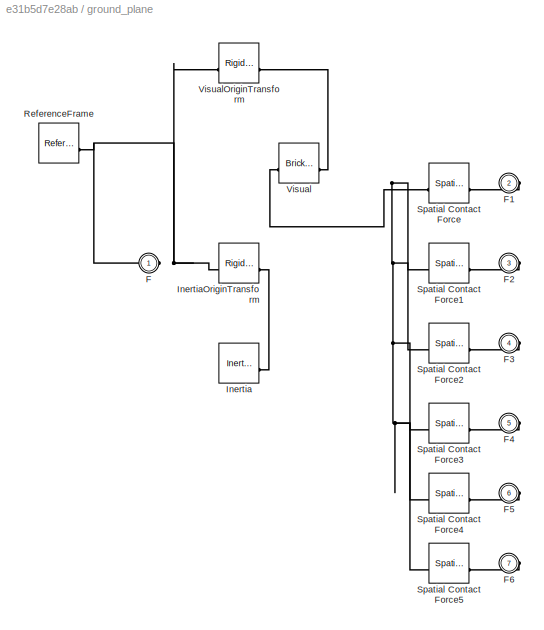
BLOCK [SubSystem] ground_plane
BLOCK [PMIOPort] ground_plane/F
  Side = Left
BLOCK [PMIOPort] ground_plane/F1
  NameLocation = top
  Port = 2
  Side = Right
BLOCK [PMIOPort] ground_plane/F2
  NameLocation = top
  Port = 3
  Side = Right
BLOCK [PMIOPort] ground_plane/F3
  NameLocation = top
  Port = 4
  Side = Right
BLOCK [PMIOPort] ground_plane/F4
  NameLocation = top
  Port = 5
  Side = Right
BLOCK [PMIOPort] ground_plane/F5
  NameLocation = top
  Port = 6
  Side = Right
BLOCK [PMIOPort] ground_plane/F6
  NameLocation = top
  Port = 7
  Side = Right
BLOCK [Reference] ground_plane/Inertia  REF=sm_lib/Body Elements/Inertia
  SourceBlock = sm_lib/Body Elements/Inertia
  SourceType = Inertia
BLOCK [Reference] ground_plane/InertiaOriginTransform  REF=sm_lib/Frames and
Transforms/Rigid
Transform
  SourceBlock = sm_lib/Frames and\nTransforms/Rigid\nTransform
  SourceType = Rigid\nTransform
BLOCK [Reference] ground_plane/ReferenceFrame  REF=sm_lib/Frames and
Transforms/Reference
Frame
  SourceBlock = sm_lib/Frames and\nTransforms/Reference\nFrame
  SourceType = Reference\nFrame
BLOCK [Reference] ground_plane/Spatial Contact Force  REF=sm_lib/Forces and
Torques/Spatial
Contact Force
  SourceBlock = sm_lib/Forces and\nTorques/Spatial\nContact Force
  SourceType = Spatial\nContact Force
BLOCK [Reference] ground_plane/Spatial Contact Force1  REF=sm_lib/Forces and
Torques/Spatial
Contact Force
  SourceBlock = sm_lib/Forces and\nTorques/Spatial\nContact Force
  SourceType = Spatial\nContact Force
BLOCK [Reference] ground_plane/Spatial Contact Force2  REF=sm_lib/Forces and
Torques/Spatial
Contact Force
  SourceBlock = sm_lib/Forces and\nTorques/Spatial\nContact Force
  SourceType = Spatial\nContact Force
BLOCK [Reference] ground_plane/Spatial Contact Force3  REF=sm_lib/Forces and
Torques/Spatial
Contact Force
  SourceBlock = sm_lib/Forces and\nTorques/Spatial\nContact Force
  SourceType = Spatial\nContact Force
BLOCK [Reference] ground_plane/Spatial Contact Force4  REF=sm_lib/Forces and
Torques/Spatial
Contact Force
  SourceBlock = sm_lib/Forces and\nTorques/Spatial\nContact Force
  SourceType = Spatial\nContact Force
BLOCK [Reference] ground_plane/Spatial Contact Force5  REF=sm_lib/Forces and
Torques/Spatial
Contact Force
  SourceBlock = sm_lib/Forces and\nTorques/Spatial\nContact Force
  SourceType = Spatial\nContact Force
BLOCK [Reference] ground_plane/Visual  REF=sm_lib/Body Elements/Brick Solid
  SourceBlock = sm_lib/Body Elements/Brick Solid
  SourceType = Brick Solid
BLOCK [Reference] ground_plane/VisualOriginTransform  REF=sm_lib/Frames and
Transforms/Rigid
Transform
  SourceBlock = sm_lib/Frames and\nTransforms/Rigid\nTransform
  SourceType = Rigid\nTransform
BLOCK [Reference] ground_plane_joint  REF=sm_lib/Joints/Weld Joint
  SourceBlock = sm_lib/Joints/Weld Joint
  SourceType = Weld Joint
BLOCK [Reference] robotiq_85_base_joint  REF=sm_lib/Joints/Weld Joint
  SourceBlock = sm_lib/Joints/Weld Joint
  SourceType = Weld Joint
BLOCK [SubSystem] robotiq_85_base_link
BLOCK [PMIOPort] robotiq_85_base_link/F
  Side = Left
BLOCK [PMIOPort] robotiq_85_base_link/F1
  Port = 5
  Side = Right
BLOCK [PMIOPort] robotiq_85_base_link/F2
  Port = 4
  Side = Right
BLOCK [PMIOPort] robotiq_85_base_link/F3
  Port = 3
  Side = Right
BLOCK [PMIOPort] robotiq_85_base_link/F4
  Port = 2
  Side = Right
BLOCK [Reference] robotiq_85_base_link/Inertia  REF=sm_lib/Body Elements/Inertia
  SourceBlock = sm_lib/Body Elements/Inertia
  SourceType = Inertia
BLOCK [Reference] robotiq_85_base_link/InertiaOriginTransform  REF=sm_lib/Frames and
Transforms/Rigid
Transform
  SourceBlock = sm_lib/Frames and\nTransforms/Rigid\nTransform
  SourceType = Rigid\nTransform
BLOCK [Reference] robotiq_85_base_link/ReferenceFrame  REF=sm_lib/Frames and
Transforms/Reference
Frame
  SourceBlock = sm_lib/Frames and\nTransforms/Reference\nFrame
  SourceType = Reference\nFrame
BLOCK [Reference] robotiq_85_base_link/Visual  REF=sm_lib/Body Elements/File Solid
  SourceBlock = sm_lib/Body Elements/File Solid
  SourceType = File Solid
BLOCK [Reference] robotiq_85_base_link/VisualOriginTransform  REF=sm_lib/Frames and
Transforms/Rigid
Transform
  SourceBlock = sm_lib/Frames and\nTransforms/Rigid\nTransform
  SourceType = Rigid\nTransform
BLOCK [Reference] robotiq_85_base_link/robotiq_85_left_inner_knuckle_joint_AxisTransform  REF=sm_lib/Frames and
Transforms/Rigid
Transform
  SourceBlock = sm_lib/Frames and\nTransforms/Rigid\nTransform
  SourceType = Rigid\nTransform
BLOCK [Reference] robotiq_85_base_link/robotiq_85_left_inner_knuckle_joint_OriginTransform  REF=sm_lib/Frames and
Transforms/Rigid
Transform
  SourceBlock = sm_lib/Frames and\nTransforms/Rigid\nTransform
  SourceType = Rigid\nTransform
BLOCK [Reference] robotiq_85_base_link/robotiq_85_left_knuckle_joint_AxisTransform  REF=sm_lib/Frames and
Transforms/Rigid
Transform
  SourceBlock = sm_lib/Frames and\nTransforms/Rigid\nTransform
  SourceType = Rigid\nTransform
BLOCK [Reference] robotiq_85_base_link/robotiq_85_left_knuckle_joint_OriginTransform  REF=sm_lib/Frames and
Transforms/Rigid
Transform
  SourceBlock = sm_lib/Frames and\nTransforms/Rigid\nTransform
  SourceType = Rigid\nTransform
BLOCK [Reference] robotiq_85_base_link/robotiq_85_right_inner_knuckle_joint_AxisTransform  REF=sm_lib/Frames and
Transforms/Rigid
Transform
  SourceBlock = sm_lib/Frames and\nTransforms/Rigid\nTransform
  SourceType = Rigid\nTransform
BLOCK [Reference] robotiq_85_base_link/robotiq_85_right_inner_knuckle_joint_OriginTransform  REF=sm_lib/Frames and
Transforms/Rigid
Transform
  SourceBlock = sm_lib/Frames and\nTransforms/Rigid\nTransform
  SourceType = Rigid\nTransform
BLOCK [Reference] robotiq_85_base_link/robotiq_85_right_knuckle_joint_AxisTransform  REF=sm_lib/Frames and
Transforms/Rigid
Transform
  SourceBlock = sm_lib/Frames and\nTransforms/Rigid\nTransform
  SourceType = Rigid\nTransform
BLOCK [Reference] robotiq_85_base_link/robotiq_85_right_knuckle_joint_OriginTransform  REF=sm_lib/Frames and
Transforms/Rigid
Transform
  SourceBlock = sm_lib/Frames and\nTransforms/Rigid\nTransform
  SourceType = Rigid\nTransform
BLOCK [SubSystem] robotiq_85_base_link1
BLOCK [PMIOPort] robotiq_85_base_link1/F
  Side = Left
BLOCK [Reference] robotiq_85_base_link1/Inertia  REF=sm_lib/Body Elements/Inertia
  SourceBlock = sm_lib/Body Elements/Inertia
  SourceType = Inertia
BLOCK [Reference] robotiq_85_base_link1/InertiaOriginTransform  REF=sm_lib/Frames and
Transforms/Rigid
Transform
  SourceBlock = sm_lib/Frames and\nTransforms/Rigid\nTransform
  SourceType = Rigid\nTransform
BLOCK [Reference] robotiq_85_base_link1/ReferenceFrame  REF=sm_lib/Frames and
Transforms/Reference
Frame
  SourceBlock = sm_lib/Frames and\nTransforms/Reference\nFrame
  SourceType = Reference\nFrame
BLOCK [Reference] robotiq_85_base_link1/Visual  REF=sm_lib/Body Elements/File Solid
  SourceBlock = sm_lib/Body Elements/File Solid
  SourceType = File Solid
BLOCK [Reference] robotiq_85_base_link1/VisualOriginTransform  REF=sm_lib/Frames and
Transforms/Rigid
Transform
  SourceBlock = sm_lib/Frames and\nTransforms/Rigid\nTransform
  SourceType = Rigid\nTransform
BLOCK [Reference] robotiq_85_left_finger_joint  REF=sm_lib/Joints/Weld Joint
  SourceBlock = sm_lib/Joints/Weld Joint
  SourceType = Weld Joint
BLOCK [SubSystem] robotiq_85_left_finger_link
BLOCK [PMIOPort] robotiq_85_left_finger_link/F
  Side = Left
BLOCK [PMIOPort] robotiq_85_left_finger_link/F1
  Port = 2
  Side = Right
BLOCK [Reference] robotiq_85_left_finger_link/Inertia  REF=sm_lib/Body Elements/Inertia
  SourceBlock = sm_lib/Body Elements/Inertia
  SourceType = Inertia
BLOCK [Reference] robotiq_85_left_finger_link/InertiaOriginTransform  REF=sm_lib/Frames and
Transforms/Rigid
Transform
  SourceBlock = sm_lib/Frames and\nTransforms/Rigid\nTransform
  SourceType = Rigid\nTransform
BLOCK [Reference] robotiq_85_left_finger_link/ReferenceFrame  REF=sm_lib/Frames and
Transforms/Reference
Frame
  SourceBlock = sm_lib/Frames and\nTransforms/Reference\nFrame
  SourceType = Reference\nFrame
BLOCK [Reference] robotiq_85_left_finger_link/Visual  REF=sm_lib/Body Elements/File Solid
  SourceBlock = sm_lib/Body Elements/File Solid
  SourceType = File Solid
BLOCK [Reference] robotiq_85_left_finger_link/VisualOriginTransform  REF=sm_lib/Frames and
Transforms/Rigid
Transform
  SourceBlock = sm_lib/Frames and\nTransforms/Rigid\nTransform
  SourceType = Rigid\nTransform
BLOCK [Reference] robotiq_85_left_finger_link/robotiq_85_left_finger_tip_joint_AxisTransform  REF=sm_lib/Frames and
Transforms/Rigid
Transform
  SourceBlock = sm_lib/Frames and\nTransforms/Rigid\nTransform
  SourceType = Rigid\nTransform
BLOCK [Reference] robotiq_85_left_finger_link/robotiq_85_left_finger_tip_joint_OriginTransform  REF=sm_lib/Frames and
Transforms/Rigid
Transform
  SourceBlock = sm_lib/Frames and\nTransforms/Rigid\nTransform
  SourceType = Rigid\nTransform
BLOCK [Reference] robotiq_85_left_finger_tip_joint  REF=sm_lib/Joints/Revolute Joint
  SourceBlock = sm_lib/Joints/Revolute Joint
  SourceType = Revolute Joint
BLOCK [SubSystem] robotiq_85_left_finger_tip_link
BLOCK [PMIOPort] robotiq_85_left_finger_tip_link/F
  Side = Left
BLOCK [Reference] robotiq_85_left_finger_tip_link/Inertia  REF=sm_lib/Body Elements/Inertia
  SourceBlock = sm_lib/Body Elements/Inertia
  SourceType = Inertia
BLOCK [Reference] robotiq_85_left_finger_tip_link/InertiaOriginTransform  REF=sm_lib/Frames and
Transforms/Rigid
Transform
  SourceBlock = sm_lib/Frames and\nTransforms/Rigid\nTransform
  SourceType = Rigid\nTransform
BLOCK [Reference] robotiq_85_left_finger_tip_link/ReferenceFrame  REF=sm_lib/Frames and
Transforms/Reference
Frame
  SourceBlock = sm_lib/Frames and\nTransforms/Reference\nFrame
  SourceType = Reference\nFrame
BLOCK [Reference] robotiq_85_left_finger_tip_link/Visual  REF=sm_lib/Body Elements/File Solid
  SourceBlock = sm_lib/Body Elements/File Solid
  SourceType = File Solid
BLOCK [Reference] robotiq_85_left_finger_tip_link/VisualOriginTransform  REF=sm_lib/Frames and
Transforms/Rigid
Transform
  SourceBlock = sm_lib/Frames and\nTransforms/Rigid\nTransform
  SourceType = Rigid\nTransform
BLOCK [Reference] robotiq_85_left_finger_tip_link/robotiq_85_left_finger_tip_joint_AxisInvTransform  REF=sm_lib/Frames and
Transforms/Rigid
Transform
  SourceBlock = sm_lib/Frames and\nTransforms/Rigid\nTransform
  SourceType = Rigid\nTransform
BLOCK [Reference] robotiq_85_left_inner_knuckle_joint  REF=sm_lib/Joints/Revolute Joint
  SourceBlock = sm_lib/Joints/Revolute Joint
  SourceType = Revolute Joint
BLOCK [SubSystem] robotiq_85_left_inner_knuckle_link
BLOCK [PMIOPort] robotiq_85_left_inner_knuckle_link/F
  Side = Left
BLOCK [Reference] robotiq_85_left_inner_knuckle_link/Inertia  REF=sm_lib/Body Elements/Inertia
  SourceBlock = sm_lib/Body Elements/Inertia
  SourceType = Inertia
BLOCK [Reference] robotiq_85_left_inner_knuckle_link/InertiaOriginTransform  REF=sm_lib/Frames and
Transforms/Rigid
Transform
  SourceBlock = sm_lib/Frames and\nTransforms/Rigid\nTransform
  SourceType = Rigid\nTransform
BLOCK [Reference] robotiq_85_left_inner_knuckle_link/ReferenceFrame  REF=sm_lib/Frames and
Transforms/Reference
Frame
  SourceBlock = sm_lib/Frames and\nTransforms/Reference\nFrame
  SourceType = Reference\nFrame
BLOCK [Reference] robotiq_85_left_inner_knuckle_link/Visual  REF=sm_lib/Body Elements/File Solid
  SourceBlock = sm_lib/Body Elements/File Solid
  SourceType = File Solid
BLOCK [Reference] robotiq_85_left_inner_knuckle_link/VisualOriginTransform  REF=sm_lib/Frames and
Transforms/Rigid
Transform
  SourceBlock = sm_lib/Frames and\nTransforms/Rigid\nTransform
  SourceType = Rigid\nTransform
BLOCK [Reference] robotiq_85_left_inner_knuckle_link/robotiq_85_left_inner_knuckle_joint_AxisInvTransform  REF=sm_lib/Frames and
Transforms/Rigid
Transform
  SourceBlock = sm_lib/Frames and\nTransforms/Rigid\nTransform
  SourceType = Rigid\nTransform
BLOCK [Reference] robotiq_85_left_knuckle_joint  REF=sm_lib/Joints/Revolute Joint
  SourceBlock = sm_lib/Joints/Revolute Joint
  SourceType = Revolute Joint
BLOCK [SubSystem] robotiq_85_left_knuckle_link
BLOCK [PMIOPort] robotiq_85_left_knuckle_link/F
  Side = Left
BLOCK [PMIOPort] robotiq_85_left_knuckle_link/F1
  Port = 2
  Side = Right
BLOCK [Reference] robotiq_85_left_knuckle_link/Inertia  REF=sm_lib/Body Elements/Inertia
  SourceBlock = sm_lib/Body Elements/Inertia
  SourceType = Inertia
BLOCK [Reference] robotiq_85_left_knuckle_link/InertiaOriginTransform  REF=sm_lib/Frames and
Transforms/Rigid
Transform
  SourceBlock = sm_lib/Frames and\nTransforms/Rigid\nTransform
  SourceType = Rigid\nTransform
BLOCK [Reference] robotiq_85_left_knuckle_link/ReferenceFrame  REF=sm_lib/Frames and
Transforms/Reference
Frame
  SourceBlock = sm_lib/Frames and\nTransforms/Reference\nFrame
  SourceType = Reference\nFrame
BLOCK [Reference] robotiq_85_left_knuckle_link/Visual  REF=sm_lib/Body Elements/File Solid
  SourceBlock = sm_lib/Body Elements/File Solid
  SourceType = File Solid
BLOCK [Reference] robotiq_85_left_knuckle_link/VisualOriginTransform  REF=sm_lib/Frames and
Transforms/Rigid
Transform
  SourceBlock = sm_lib/Frames and\nTransforms/Rigid\nTransform
  SourceType = Rigid\nTransform
BLOCK [Reference] robotiq_85_left_knuckle_link/robotiq_85_left_finger_joint_OriginTransform  REF=sm_lib/Frames and
Transforms/Rigid
Transform
  SourceBlock = sm_lib/Frames and\nTransforms/Rigid\nTransform
  SourceType = Rigid\nTransform
BLOCK [Reference] robotiq_85_left_knuckle_link/robotiq_85_left_knuckle_joint_AxisInvTransform  REF=sm_lib/Frames and
Transforms/Rigid
Transform
  SourceBlock = sm_lib/Frames and\nTransforms/Rigid\nTransform
  SourceType = Rigid\nTransform
BLOCK [Reference] robotiq_85_right_finger_joint  REF=sm_lib/Joints/Weld Joint
  SourceBlock = sm_lib/Joints/Weld Joint
  SourceType = Weld Joint
BLOCK [SubSystem] robotiq_85_right_finger_link
BLOCK [PMIOPort] robotiq_85_right_finger_link/F
  Side = Left
BLOCK [PMIOPort] robotiq_85_right_finger_link/F1
  Port = 2
  Side = Right
BLOCK [Reference] robotiq_85_right_finger_link/Inertia  REF=sm_lib/Body Elements/Inertia
  SourceBlock = sm_lib/Body Elements/Inertia
  SourceType = Inertia
BLOCK [Reference] robotiq_85_right_finger_link/InertiaOriginTransform  REF=sm_lib/Frames and
Transforms/Rigid
Transform
  SourceBlock = sm_lib/Frames and\nTransforms/Rigid\nTransform
  SourceType = Rigid\nTransform
BLOCK [Reference] robotiq_85_right_finger_link/ReferenceFrame  REF=sm_lib/Frames and
Transforms/Reference
Frame
  SourceBlock = sm_lib/Frames and\nTransforms/Reference\nFrame
  SourceType = Reference\nFrame
BLOCK [Reference] robotiq_85_right_finger_link/Visual  REF=sm_lib/Body Elements/File Solid
  SourceBlock = sm_lib/Body Elements/File Solid
  SourceType = File Solid
BLOCK [Reference] robotiq_85_right_finger_link/VisualOriginTransform  REF=sm_lib/Frames and
Transforms/Rigid
Transform
  SourceBlock = sm_lib/Frames and\nTransforms/Rigid\nTransform
  SourceType = Rigid\nTransform
BLOCK [Reference] robotiq_85_right_finger_link/robotiq_85_right_finger_tip_joint_AxisTransform  REF=sm_lib/Frames and
Transforms/Rigid
Transform
  SourceBlock = sm_lib/Frames and\nTransforms/Rigid\nTransform
  SourceType = Rigid\nTransform
BLOCK [Reference] robotiq_85_right_finger_link/robotiq_85_right_finger_tip_joint_OriginTransform  REF=sm_lib/Frames and
Transforms/Rigid
Transform
  SourceBlock = sm_lib/Frames and\nTransforms/Rigid\nTransform
  SourceType = Rigid\nTransform
BLOCK [Reference] robotiq_85_right_finger_tip_joint  REF=sm_lib/Joints/Revolute Joint
  SourceBlock = sm_lib/Joints/Revolute Joint
  SourceType = Revolute Joint
BLOCK [SubSystem] robotiq_85_right_finger_tip_link
BLOCK [PMIOPort] robotiq_85_right_finger_tip_link/F
  Side = Left
BLOCK [Reference] robotiq_85_right_finger_tip_link/Inertia  REF=sm_lib/Body Elements/Inertia
  SourceBlock = sm_lib/Body Elements/Inertia
  SourceType = Inertia
BLOCK [Reference] robotiq_85_right_finger_tip_link/InertiaOriginTransform  REF=sm_lib/Frames and
Transforms/Rigid
Transform
  SourceBlock = sm_lib/Frames and\nTransforms/Rigid\nTransform
  SourceType = Rigid\nTransform
BLOCK [Reference] robotiq_85_right_finger_tip_link/ReferenceFrame  REF=sm_lib/Frames and
Transforms/Reference
Frame
  SourceBlock = sm_lib/Frames and\nTransforms/Reference\nFrame
  SourceType = Reference\nFrame
BLOCK [Reference] robotiq_85_right_finger_tip_link/Visual  REF=sm_lib/Body Elements/File Solid
  SourceBlock = sm_lib/Body Elements/File Solid
  SourceType = File Solid
BLOCK [Reference] robotiq_85_right_finger_tip_link/VisualOriginTransform  REF=sm_lib/Frames and
Transforms/Rigid
Transform
  SourceBlock = sm_lib/Frames and\nTransforms/Rigid\nTransform
  SourceType = Rigid\nTransform
BLOCK [Reference] robotiq_85_right_finger_tip_link/robotiq_85_right_finger_tip_joint_AxisInvTransform  REF=sm_lib/Frames and
Transforms/Rigid
Transform
  SourceBlock = sm_lib/Frames and\nTransforms/Rigid\nTransform
  SourceType = Rigid\nTransform
BLOCK [Reference] robotiq_85_right_inner_knuckle_joint  REF=sm_lib/Joints/Revolute Joint
  SourceBlock = sm_lib/Joints/Revolute Joint
  SourceType = Revolute Joint
BLOCK [SubSystem] robotiq_85_right_inner_knuckle_link
BLOCK [PMIOPort] robotiq_85_right_inner_knuckle_link/F
  Side = Left
BLOCK [Reference] robotiq_85_right_inner_knuckle_link/Inertia  REF=sm_lib/Body Elements/Inertia
  SourceBlock = sm_lib/Body Elements/Inertia
  SourceType = Inertia
BLOCK [Reference] robotiq_85_right_inner_knuckle_link/InertiaOriginTransform  REF=sm_lib/Frames and
Transforms/Rigid
Transform
  SourceBlock = sm_lib/Frames and\nTransforms/Rigid\nTransform
  SourceType = Rigid\nTransform
BLOCK [Reference] robotiq_85_right_inner_knuckle_link/ReferenceFrame  REF=sm_lib/Frames and
Transforms/Reference
Frame
  SourceBlock = sm_lib/Frames and\nTransforms/Reference\nFrame
  SourceType = Reference\nFrame
BLOCK [Reference] robotiq_85_right_inner_knuckle_link/Visual  REF=sm_lib/Body Elements/File Solid
  SourceBlock = sm_lib/Body Elements/File Solid
  SourceType = File Solid
BLOCK [Reference] robotiq_85_right_inner_knuckle_link/VisualOriginTransform  REF=sm_lib/Frames and
Transforms/Rigid
Transform
  SourceBlock = sm_lib/Frames and\nTransforms/Rigid\nTransform
  SourceType = Rigid\nTransform
BLOCK [Reference] robotiq_85_right_inner_knuckle_link/robotiq_85_right_inner_knuckle_joint_AxisInvTransform  REF=sm_lib/Frames and
Transforms/Rigid
Transform
  SourceBlock = sm_lib/Frames and\nTransforms/Rigid\nTransform
  SourceType = Rigid\nTransform
BLOCK [Reference] robotiq_85_right_knuckle_joint  REF=sm_lib/Joints/Revolute Joint
  SourceBlock = sm_lib/Joints/Revolute Joint
  SourceType = Revolute Joint
BLOCK [SubSystem] robotiq_85_right_knuckle_link
BLOCK [PMIOPort] robotiq_85_right_knuckle_link/F
  Side = Left
BLOCK [PMIOPort] robotiq_85_right_knuckle_link/F1
  Port = 2
  Side = Right
BLOCK [Reference] robotiq_85_right_knuckle_link/Inertia  REF=sm_lib/Body Elements/Inertia
  SourceBlock = sm_lib/Body Elements/Inertia
  SourceType = Inertia
BLOCK [Reference] robotiq_85_right_knuckle_link/InertiaOriginTransform  REF=sm_lib/Frames and
Transforms/Rigid
Transform
  SourceBlock = sm_lib/Frames and\nTransforms/Rigid\nTransform
  SourceType = Rigid\nTransform
BLOCK [Reference] robotiq_85_right_knuckle_link/ReferenceFrame  REF=sm_lib/Frames and
Transforms/Reference
Frame
  SourceBlock = sm_lib/Frames and\nTransforms/Reference\nFrame
  SourceType = Reference\nFrame
BLOCK [Reference] robotiq_85_right_knuckle_link/Visual  REF=sm_lib/Body Elements/File Solid
  SourceBlock = sm_lib/Body Elements/File Solid
  SourceType = File Solid
BLOCK [Reference] robotiq_85_right_knuckle_link/VisualOriginTransform  REF=sm_lib/Frames and
Transforms/Rigid
Transform
  SourceBlock = sm_lib/Frames and\nTransforms/Rigid\nTransform
  SourceType = Rigid\nTransform
BLOCK [Reference] robotiq_85_right_knuckle_link/robotiq_85_right_finger_joint_OriginTransform  REF=sm_lib/Frames and
Transforms/Rigid
Transform
  SourceBlock = sm_lib/Frames and\nTransforms/Rigid\nTransform
  SourceType = Rigid\nTransform
BLOCK [Reference] robotiq_85_right_knuckle_link/robotiq_85_right_knuckle_joint_AxisInvTransform  REF=sm_lib/Frames and
Transforms/Rigid
Transform
  SourceBlock = sm_lib/Frames and\nTransforms/Rigid\nTransform
  SourceType = Rigid\nTransform
BLOCK [Reference] shoulder_lift_joint  REF=sm_lib/Joints/Revolute Joint
  SourceBlock = sm_lib/Joints/Revolute Joint
  SourceType = Revolute Joint
BLOCK [SubSystem] shoulder_link
BLOCK [PMIOPort] shoulder_link/F
  Port = 2
  Side = Left
BLOCK [PMIOPort] shoulder_link/F1
  Port = 3
  Side = Right
BLOCK [PMIOPort] shoulder_link/F2
  Side = Left
BLOCK [Reference] shoulder_link/Inertia  REF=sm_lib/Body Elements/Inertia
  SourceBlock = sm_lib/Body Elements/Inertia
  SourceType = Inertia
BLOCK [Reference] shoulder_link/InertiaOriginTransform  REF=sm_lib/Frames and
Transforms/Rigid
Transform
  SourceBlock = sm_lib/Frames and\nTransforms/Rigid\nTransform
  SourceType = Rigid\nTransform
BLOCK [Reference] shoulder_link/ReferenceFrame  REF=sm_lib/Frames and
Transforms/Reference
Frame
  SourceBlock = sm_lib/Frames and\nTransforms/Reference\nFrame
  SourceType = Reference\nFrame
BLOCK [Reference] shoulder_link/Visual  REF=sm_lib/Body Elements/File Solid
  NameLocation = top
  SourceBlock = sm_lib/Body Elements/File Solid
  SourceType = File Solid
BLOCK [Reference] shoulder_link/VisualOriginTransform  REF=sm_lib/Frames and
Transforms/Rigid
Transform
  SourceBlock = sm_lib/Frames and\nTransforms/Rigid\nTransform
  SourceType = Rigid\nTransform
BLOCK [Reference] shoulder_link/shoulder_lift_joint_AxisTransform  REF=sm_lib/Frames and
Transforms/Rigid
Transform
  SourceBlock = sm_lib/Frames and\nTransforms/Rigid\nTransform
  SourceType = Rigid\nTransform
BLOCK [Reference] shoulder_link/shoulder_lift_joint_OriginTransform  REF=sm_lib/Frames and
Transforms/Rigid
Transform
  SourceBlock = sm_lib/Frames and\nTransforms/Rigid\nTransform
  SourceType = Rigid\nTransform
BLOCK [Reference] shoulder_link/shoulder_pan_joint_AxisInvTransform  REF=sm_lib/Frames and
Transforms/Rigid
Transform
  SourceBlock = sm_lib/Frames and\nTransforms/Rigid\nTransform
  SourceType = Rigid\nTransform
BLOCK [Reference] shoulder_pan_joint  REF=sm_lib/Joints/Revolute Joint
  SourceBlock = sm_lib/Joints/Revolute Joint
  SourceType = Revolute Joint
BLOCK [SubSystem] tool0
BLOCK [PMIOPort] tool0/F
  Side = Left
BLOCK [Reference] tool0/Inertia  REF=sm_lib/Body Elements/Inertia
  SourceBlock = sm_lib/Body Elements/Inertia
  SourceType = Inertia
BLOCK [Reference] tool0/InertiaOriginTransform  REF=sm_lib/Frames and
Transforms/Rigid
Transform
  SourceBlock = sm_lib/Frames and\nTransforms/Rigid\nTransform
  SourceType = Rigid\nTransform
BLOCK [Reference] tool0/ReferenceFrame  REF=sm_lib/Frames and
Transforms/Reference
Frame
  SourceBlock = sm_lib/Frames and\nTransforms/Reference\nFrame
  SourceType = Reference\nFrame
BLOCK [SubSystem] upper_arm_link
BLOCK [PMIOPort] upper_arm_link/F
  Side = Left
BLOCK [PMIOPort] upper_arm_link/F1
  Port = 2
  Side = Right
BLOCK [PMIOPort] upper_arm_link/F2
  Port = 3
  Side = Left
BLOCK [Reference] upper_arm_link/Inertia  REF=sm_lib/Body Elements/Inertia
  NameLocation = top
  SourceBlock = sm_lib/Body Elements/Inertia
  SourceType = Inertia
BLOCK [Reference] upper_arm_link/InertiaOriginTransform  REF=sm_lib/Frames and
Transforms/Rigid
Transform
  SourceBlock = sm_lib/Frames and\nTransforms/Rigid\nTransform
  SourceType = Rigid\nTransform
BLOCK [Reference] upper_arm_link/ReferenceFrame  REF=sm_lib/Frames and
Transforms/Reference
Frame
  SourceBlock = sm_lib/Frames and\nTransforms/Reference\nFrame
  SourceType = Reference\nFrame
BLOCK [Reference] upper_arm_link/Visual  REF=sm_lib/Body Elements/File Solid
  NameLocation = top
  SourceBlock = sm_lib/Body Elements/File Solid
  SourceType = File Solid
BLOCK [Reference] upper_arm_link/VisualOriginTransform  REF=sm_lib/Frames and
Transforms/Rigid
Transform
  SourceBlock = sm_lib/Frames and\nTransforms/Rigid\nTransform
  SourceType = Rigid\nTransform
BLOCK [Reference] upper_arm_link/elbow_joint_AxisTransform  REF=sm_lib/Frames and
Transforms/Rigid
Transform
  SourceBlock = sm_lib/Frames and\nTransforms/Rigid\nTransform
  SourceType = Rigid\nTransform
BLOCK [Reference] upper_arm_link/elbow_joint_OriginTransform  REF=sm_lib/Frames and
Transforms/Rigid
Transform
  SourceBlock = sm_lib/Frames and\nTransforms/Rigid\nTransform
  SourceType = Rigid\nTransform
BLOCK [Reference] upper_arm_link/shoulder_lift_joint_AxisInvTransform  REF=sm_lib/Frames and
Transforms/Rigid
Transform
  SourceBlock = sm_lib/Frames and\nTransforms/Rigid\nTransform
  SourceType = Rigid\nTransform
BLOCK [SubSystem] world
BLOCK [PMIOPort] world/F
  Side = Left
BLOCK [PMIOPort] world/F1
  Port = 3
  Side = Right
BLOCK [PMIOPort] world/F2
  Port = 2
  Side = Right
BLOCK [Reference] world/ReferenceFrame  REF=sm_lib/Frames and
Transforms/Reference
Frame
  SourceBlock = sm_lib/Frames and\nTransforms/Reference\nFrame
  SourceType = Reference\nFrame
BLOCK [Reference] world/base_joint_OriginTransform  REF=sm_lib/Frames and
Transforms/Rigid
Transform
  SourceBlock = sm_lib/Frames and\nTransforms/Rigid\nTransform
  SourceType = Rigid\nTransform
BLOCK [Reference] world/ground_plane_joint_OriginTransform  REF=sm_lib/Frames and
Transforms/Rigid
Transform
  SourceBlock = sm_lib/Frames and\nTransforms/Rigid\nTransform
  SourceType = Rigid\nTransform
BLOCK [Reference] wrist_1_joint  REF=sm_lib/Joints/Revolute Joint
  SourceBlock = sm_lib/Joints/Revolute Joint
  SourceType = Revolute Joint
BLOCK [SubSystem] wrist_1_link
BLOCK [PMIOPort] wrist_1_link/F
  Side = Left
BLOCK [PMIOPort] wrist_1_link/F1
  Port = 2
  Side = Right
BLOCK [PMIOPort] wrist_1_link/F2
  Port = 3
  Side = Left
BLOCK [Reference] wrist_1_link/Inertia  REF=sm_lib/Body Elements/Inertia
  SourceBlock = sm_lib/Body Elements/Inertia
  SourceType = Inertia
BLOCK [Reference] wrist_1_link/InertiaOriginTransform  REF=sm_lib/Frames and
Transforms/Rigid
Transform
  SourceBlock = sm_lib/Frames and\nTransforms/Rigid\nTransform
  SourceType = Rigid\nTransform
BLOCK [Reference] wrist_1_link/ReferenceFrame  REF=sm_lib/Frames and
Transforms/Reference
Frame
  SourceBlock = sm_lib/Frames and\nTransforms/Reference\nFrame
  SourceType = Reference\nFrame
BLOCK [Reference] wrist_1_link/Visual  REF=sm_lib/Body Elements/File Solid
  NameLocation = top
  SourceBlock = sm_lib/Body Elements/File Solid
  SourceType = File Solid
BLOCK [Reference] wrist_1_link/VisualOriginTransform  REF=sm_lib/Frames and
Transforms/Rigid
Transform
  SourceBlock = sm_lib/Frames and\nTransforms/Rigid\nTransform
  SourceType = Rigid\nTransform
BLOCK [Reference] wrist_1_link/wrist_1_joint_AxisInvTransform  REF=sm_lib/Frames and
Transforms/Rigid
Transform
  SourceBlock = sm_lib/Frames and\nTransforms/Rigid\nTransform
  SourceType = Rigid\nTransform
BLOCK [Reference] wrist_1_link/wrist_2_joint_AxisTransform  REF=sm_lib/Frames and
Transforms/Rigid
Transform
  SourceBlock = sm_lib/Frames and\nTransforms/Rigid\nTransform
  SourceType = Rigid\nTransform
BLOCK [Reference] wrist_1_link/wrist_2_joint_OriginTransform  REF=sm_lib/Frames and
Transforms/Rigid
Transform
  SourceBlock = sm_lib/Frames and\nTransforms/Rigid\nTransform
  SourceType = Rigid\nTransform
BLOCK [Reference] wrist_2_joint  REF=sm_lib/Joints/Revolute Joint
  SourceBlock = sm_lib/Joints/Revolute Joint
  SourceType = Revolute Joint
BLOCK [SubSystem] wrist_2_link
BLOCK [PMIOPort] wrist_2_link/F
  Side = Left
BLOCK [PMIOPort] wrist_2_link/F1
  Port = 2
  Side = Right
BLOCK [PMIOPort] wrist_2_link/F2
  Port = 3
  Side = Left
BLOCK [Reference] wrist_2_link/Inertia  REF=sm_lib/Body Elements/Inertia
  SourceBlock = sm_lib/Body Elements/Inertia
  SourceType = Inertia
BLOCK [Reference] wrist_2_link/InertiaOriginTransform  REF=sm_lib/Frames and
Transforms/Rigid
Transform
  SourceBlock = sm_lib/Frames and\nTransforms/Rigid\nTransform
  SourceType = Rigid\nTransform
BLOCK [Reference] wrist_2_link/ReferenceFrame  REF=sm_lib/Frames and
Transforms/Reference
Frame
  SourceBlock = sm_lib/Frames and\nTransforms/Reference\nFrame
  SourceType = Reference\nFrame
BLOCK [Reference] wrist_2_link/Visual  REF=sm_lib/Body Elements/File Solid
  NameLocation = top
  SourceBlock = sm_lib/Body Elements/File Solid
  SourceType = File Solid
BLOCK [Reference] wrist_2_link/VisualOriginTransform  REF=sm_lib/Frames and
Transforms/Rigid
Transform
  SourceBlock = sm_lib/Frames and\nTransforms/Rigid\nTransform
  SourceType = Rigid\nTransform
BLOCK [Reference] wrist_2_link/wrist_2_joint_AxisInvTransform  REF=sm_lib/Frames and
Transforms/Rigid
Transform
  SourceBlock = sm_lib/Frames and\nTransforms/Rigid\nTransform
  SourceType = Rigid\nTransform
BLOCK [Reference] wrist_2_link/wrist_3_joint_AxisTransform  REF=sm_lib/Frames and
Transforms/Rigid
Transform
  SourceBlock = sm_lib/Frames and\nTransforms/Rigid\nTransform
  SourceType = Rigid\nTransform
BLOCK [Reference] wrist_2_link/wrist_3_joint_OriginTransform  REF=sm_lib/Frames and
Transforms/Rigid
Transform
  SourceBlock = sm_lib/Frames and\nTransforms/Rigid\nTransform
  SourceType = Rigid\nTransform
BLOCK [Reference] wrist_3_flange  REF=sm_lib/Joints/Weld Joint
  SourceBlock = sm_lib/Joints/Weld Joint
  SourceType = Weld Joint
BLOCK [Reference] wrist_3_joint  REF=sm_lib/Joints/Revolute Joint
  SourceBlock = sm_lib/Joints/Revolute Joint
  SourceType = Revolute Joint
BLOCK [SubSystem] wrist_3_link
BLOCK [PMIOPort] wrist_3_link/F
  Side = Left
BLOCK [PMIOPort] wrist_3_link/F1
  Port = 3
  Side = Right
BLOCK [PMIOPort] wrist_3_link/F2
  Port = 2
  Side = Right
BLOCK [PMIOPort] wrist_3_link/F3
  Port = 4
  Side = Left
BLOCK [Reference] wrist_3_link/Inertia  REF=sm_lib/Body Elements/Inertia
  SourceBlock = sm_lib/Body Elements/Inertia
  SourceType = Inertia
BLOCK [Reference] wrist_3_link/InertiaOriginTransform  REF=sm_lib/Frames and
Transforms/Rigid
Transform
  SourceBlock = sm_lib/Frames and\nTransforms/Rigid\nTransform
  SourceType = Rigid\nTransform
BLOCK [Reference] wrist_3_link/ReferenceFrame  REF=sm_lib/Frames and
Transforms/Reference
Frame
  SourceBlock = sm_lib/Frames and\nTransforms/Reference\nFrame
  SourceType = Reference\nFrame
BLOCK [Reference] wrist_3_link/Visual  REF=sm_lib/Body Elements/File Solid
  NameLocation = top
  SourceBlock = sm_lib/Body Elements/File Solid
  SourceType = File Solid
BLOCK [Reference] wrist_3_link/VisualOriginTransform  REF=sm_lib/Frames and
Transforms/Rigid
Transform
  SourceBlock = sm_lib/Frames and\nTransforms/Rigid\nTransform
  SourceType = Rigid\nTransform
BLOCK [Reference] wrist_3_link/wrist_3_flange_OriginTransform  REF=sm_lib/Frames and
Transforms/Rigid
Transform
  SourceBlock = sm_lib/Frames and\nTransforms/Rigid\nTransform
  SourceType = Rigid\nTransform
BLOCK [Reference] wrist_3_link/wrist_3_joint_AxisInvTransform  REF=sm_lib/Frames and
Transforms/Rigid
Transform
  SourceBlock = sm_lib/Frames and\nTransforms/Rigid\nTransform
  SourceType = Rigid\nTransform
BLOCK [Reference] wrist_3_link/wrist_3_link_ft_frame_OriginTransform  REF=sm_lib/Frames and
Transforms/Rigid
Transform
  SourceBlock = sm_lib/Frames and\nTransforms/Rigid\nTransform
  SourceType = Rigid\nTransform
BLOCK [Reference] wrist_3_link_ft_frame  REF=sm_lib/Joints/Weld Joint
  SourceBlock = sm_lib/Joints/Weld Joint
  SourceType = Weld Joint
ANNOTATION (root): % Expected order: [F_px, F_py, F_pz, tau_px, tau_py, tau_pz]
ANNOTATION (root): theta_x = x(1); theta_y = x(2); theta_z = x(3); phi_x = x(4); phi_y = x(5); dot_theta_x = x(6); dot_theta_y = x(7); dot_theta_z = x(8); dot_phi_x = x(9); dot_phi_y = x(10);
ANNOTATION (root): Fake Gripper
ANNOTATION (root): JOINT SPACE CONTROL
ANNOTATION (root): MANIPULATOR JOINT TRAJECTORY
ANNOTATION (root): MASTER JOINT
ANNOTATION (root): ONCE BALLBOT STOPPED, START MANIPULATING
ANNOTATION BallBot Plant1: actuator model
LINE 1-D Lookup Table1:1 -> Goto2:1
LINE 1-D Lookup Table2:1 -> Goto3:1
LINE 1-D Lookup Table3:1 -> Goto4:1
LINE 1-D Lookup Table4:1 -> Goto5:1
LINE 1-D Lookup Table5:1 -> Goto6:1
LINE 1-D Lookup Table6:1 -> Goto7:1
LINE 1-D Lookup Table:1 -> Goto1:1
LINE Atan2:1 -> MATLAB Function1:1
LINE BallBot Plant1/Demux:1 -> BallBot Plant1/Transfer Fcn:1
LINE BallBot Plant1/Demux:2 -> BallBot Plant1/Transfer Fcn1:1
LINE BallBot Plant1/Demux:3 -> BallBot Plant1/Transfer Fcn2:1
NET BallBot Plant1/Integrator:1 -> BallBot Plant1/MATLAB Function:1, BallBot Plant1/x:1
LINE BallBot Plant1/MATLAB Function:1 -> BallBot Plant1/Integrator:1
LINE BallBot Plant1/Mux:1 -> BallBot Plant1/MATLAB Function:2
LINE BallBot Plant1/Rate Limiter1:1 -> BallBot Plant1/Mux:2
NET BallBot Plant1/Rate Limiter2:1 -> BallBot Plant1/Mux:3, BallBot Plant1/Scope:1
LINE BallBot Plant1/Rate Limiter:1 -> BallBot Plant1/Mux:1
LINE BallBot Plant1/Transfer Fcn1:1 -> BallBot Plant1/Rate Limiter1:1
LINE BallBot Plant1/Transfer Fcn2:1 -> BallBot Plant1/Rate Limiter2:1
LINE BallBot Plant1/Transfer Fcn:1 -> BallBot Plant1/Rate Limiter:1
NET BallBot Plant1/tau:1 -> BallBot Plant1/Demux:1, BallBot Plant1/Scope1:1
LINE BallBot Plant1/wrench_ext:1 -> BallBot Plant1/MATLAB Function:3
NET BallBot Plant1:1 -> Demux1:1, LQR iHACS :1, MATLAB Function:1, OP SPACE CONTROLLER:2, Scope3:1, To Workspace:1
LINE Clock1:1 -> LQR iHACS :5
LINE Clock2:1 -> MATLAB Function:3
LINE Clock:1 -> Time Scheduling:1
LINE Constant1:1 -> MATLAB Function:2
NET Demux1:1 -> Mux3:1, Simulink-PS Converter10:1
NET Demux1:2 -> Mux3:2, Simulink-PS Converter11:1
NET Demux1:3 -> Goto:1, Simulink-PS Converter13:1
LINE Demux1:4 -> Multiply1:1
LINE Demux1:5 -> Multiply:1
LINE Demux2:1 -> Mux4:1
LINE Demux2:2 -> Mux4:2
LINE Demux3:1 -> Atan2:2
LINE Demux3:2 -> Gain2:1
LINE Demux4:1 -> Simulink-PS Converter16:1
LINE Demux4:2 -> Simulink-PS Converter17:1
LINE Demux4:3 -> Simulink-PS Converter18:1
LINE Demux5:1 -> Simulink-PS Converter2:1
LINE Demux5:2 -> Simulink-PS Converter3:1
LINE Demux5:3 -> Simulink-PS Converter4:1
LINE Demux5:4 -> Simulink-PS Converter5:1
LINE Demux5:5 -> Simulink-PS Converter6:1
LINE Demux5:6 -> Simulink-PS Converter7:1
LINE Demux:1 -> Simulink-PS Converter15:1
LINE Demux:2 -> Simulink-PS Converter14:1
LINE Demux:3 -> Simulink-PS Converter12:1
LINE EQ generator:1 -> LQR iHACS :3
LINE EQ generator:2 -> LQR iHACS :4
LINE From10:1 -> OP SPACE CONTROLLER:3
LINE From11:1 -> Switch:2
LINE From12:1 -> Max:1
LINE From13:1 -> OP SPACE CONTROLLER:enable
LINE From1:1 -> Mux5:1
LINE From2:1 -> Mux5:2
LINE From3:1 -> Mux5:3
NET From4:1 -> Scope11:1, Simulink-PS Converter1:1
LINE From5:1 -> Mux5:4
LINE From6:1 -> Mux5:5
LINE From7:1 -> Mux5:6
LINE From8:1 -> Smart LookUpTable:1
LINE From9:1 -> OP SPACE CONTROLLER:1
LINE From:1 -> MATLAB Function1:2
LINE Gain1:1 -> Demux3:1
LINE Gain2:1 -> Atan2:1
NET Integrator1:1 -> MATLAB Function3:2, Scope9:1
NET LQR iHACS :1 -> BallBot Plant1:1, To Workspace7:1
NET LQR iHACS :2 -> Clock:1, Memory1:1
LINE LQR iHACS :3 -> Scope16:1
NET MATLAB Function1:1 -> LQR iHACS :6, Scope7:1
LINE MATLAB Function2:1 -> Simulink-PS Converter9:1
LINE MATLAB Function3:1 -> Switch:1
NET MATLAB Function:1 -> EQ generator:1, Gain1:1, LQR iHACS :2, Scope10:1, To Workspace1:1
NET MATLAB Function:2 -> Display2:1, LQR iHACS :7
NET Max:1 -> Display3:1, Goto12:1, Memory:1
NET Memory1:1 -> Display:1, Goto11:1
LINE Memory:1 -> Max:2
LINE Multiply1:1 -> Simulink-PS Converter8:1
LINE Multiply:1 -> Simulink-PS Converter:1
LINE Mux1:1 -> To Workspace6:1
NET Mux2:1 -> BallBot Plant1:2, EQ generator:2, MATLAB Function1:3, Scope5:1, To Workspace4:1
LINE Mux3:1 -> MATLAB Function2:1
LINE Mux4:1 -> Mux2:1
NET Mux5:1 -> MATLAB Function3:1, Switch:3
NET Mux:1 -> Goto10:1, To Workspace5:1
LINE OP SPACE CONTROLLER/MATLAB Function3:1 -> OP SPACE CONTROLLER/q_dot_command:1
LINE OP SPACE CONTROLLER/MATLAB Function3:2 -> OP SPACE CONTROLLER/error_pos:1
LINE OP SPACE CONTROLLER/T_desired:1 -> OP SPACE CONTROLLER/MATLAB Function3:1
LINE OP SPACE CONTROLLER/q_manip_actual:1 -> OP SPACE CONTROLLER/MATLAB Function3:3
LINE OP SPACE CONTROLLER/x_ballbot:1 -> OP SPACE CONTROLLER/MATLAB Function3:2
LINE OP SPACE CONTROLLER:1 -> Integrator1:1
NET OP SPACE CONTROLLER:2 -> Scope8:1, To Workspace10:1
LINE PS-Simulink Converter10:1 -> Mux1:3
LINE PS-Simulink Converter11:1 -> Mux1:4
LINE PS-Simulink Converter12:1 -> Mux1:5
LINE PS-Simulink Converter13:1 -> Mux1:6
NET PS-Simulink Converter1:1 -> Demux2:1, Scope4:1
NET PS-Simulink Converter2:1 -> Mux2:2, Scope6:1
LINE PS-Simulink Converter3:1 -> Mux:2
LINE PS-Simulink Converter4:1 -> Mux:3
LINE PS-Simulink Converter5:1 -> Mux:4
LINE PS-Simulink Converter6:1 -> Mux:5
LINE PS-Simulink Converter7:1 -> Mux:6
LINE PS-Simulink Converter8:1 -> Mux1:1
LINE PS-Simulink Converter9:1 -> Mux1:2
LINE PS-Simulink Converter:1 -> Mux:1
NET Rate Limiter:1 -> Scope1:1, Zero-Order Hold:1
LINE Smart LookUpTable:1 -> Goto9:1
NET Smart LookUpTable:2 -> Demux:1, Scope15:1
NET Smart LookUpTable:3 -> Demux4:1, Scope13:1
LINE Switch:1 -> Rate Limiter:1
NET Time Scheduling:1 -> 1-D Lookup Table1:1, 1-D Lookup Table2:1, 1-D Lookup Table3:1, 1-D Lookup Table4:1, 1-D Lookup Table5:1, 1-D Lookup Table6:1, 1-D Lookup Table:1, Goto8:1, Scope:1
NET Zero-Order Hold:1 -> Demux5:1, Scope2:1
PNET net1: Cartesian Joint1:LConn1 -- Cartesian Joint:LConn1 -- world:RConn2
PLINE Cartesian Joint1:LConn2 -- Simulink-PS Converter16:RConn1
PLINE Cartesian Joint1:LConn3 -- Simulink-PS Converter17:RConn1
PLINE Cartesian Joint1:LConn4 -- Simulink-PS Converter18:RConn1
PLINE Cartesian Joint1:RConn1 -- Gimbal Joint1:LConn1
PLINE Cartesian Joint:LConn2 -- Simulink-PS Converter:RConn1
PLINE Cartesian Joint:LConn3 -- Simulink-PS Converter8:RConn1
PLINE Cartesian Joint:LConn4 -- Simulink-PS Converter9:RConn1
PLINE Cartesian Joint:RConn1 -- Gimbal Joint:LConn1
PLINE Cartesian Joint:RConn2 -- PS-Simulink Converter1:LConn1
PLINE Gimbal Joint1:LConn2 -- Simulink-PS Converter12:RConn1
PLINE Gimbal Joint1:LConn3 -- Simulink-PS Converter14:RConn1
PLINE Gimbal Joint1:LConn4 -- Simulink-PS Converter15:RConn1
PLINE Gimbal Joint1:RConn1 -- robotiq_85_base_link1:LConn1
PLINE Gimbal Joint:LConn2 -- Simulink-PS Converter10:RConn1
PLINE Gimbal Joint:LConn3 -- Simulink-PS Converter11:RConn1
PLINE Gimbal Joint:LConn4 -- Simulink-PS Converter13:RConn1
PLINE Gimbal Joint:RConn1 -- base_joint:LConn1
PLINE Gimbal Joint:RConn2 -- PS-Simulink Converter2:LConn1
PNET net2: MechanismConfiguration:RConn1 -- Solver Configuration:RConn1 -- World:RConn1 -- world:LConn1
PNET net3: PS Gain1:LConn1 -- PS Gain2:LConn1 -- PS Gain:LConn1 -- robotiq_85_left_knuckle_joint:RConn2
PLINE PS Gain1:RConn1 -- robotiq_85_right_knuckle_joint:LConn2
PLINE PS Gain2:RConn1 -- robotiq_85_left_finger_tip_joint:LConn2
PLINE PS Gain:RConn1 -- robotiq_85_right_inner_knuckle_joint:LConn2
PLINE PS-Simulink Converter10:LConn1 -- elbow_joint:RConn3
PLINE PS-Simulink Converter11:LConn1 -- wrist_1_joint:RConn3
PLINE PS-Simulink Converter12:LConn1 -- wrist_2_joint:RConn3
PLINE PS-Simulink Converter13:LConn1 -- wrist_3_joint:RConn3
PLINE PS-Simulink Converter3:LConn1 -- shoulder_lift_joint:RConn2
PLINE PS-Simulink Converter4:LConn1 -- elbow_joint:RConn2
PLINE PS-Simulink Converter5:LConn1 -- wrist_1_joint:RConn2
PLINE PS-Simulink Converter6:LConn1 -- wrist_2_joint:RConn2
PLINE PS-Simulink Converter7:LConn1 -- wrist_3_joint:RConn2
PLINE PS-Simulink Converter8:LConn1 -- shoulder_pan_joint:RConn3
PLINE PS-Simulink Converter9:LConn1 -- shoulder_lift_joint:RConn3
PLINE PS-Simulink Converter:LConn1 -- shoulder_pan_joint:RConn2
PNET net4: Simulink-PS Converter1:RConn1 -- robotiq_85_left_inner_knuckle_joint:LConn2 -- robotiq_85_left_knuckle_joint:LConn2 -- robotiq_85_right_finger_tip_joint:LConn2
PLINE Simulink-PS Converter2:RConn1 -- shoulder_pan_joint:LConn2
PLINE Simulink-PS Converter3:RConn1 -- shoulder_lift_joint:LConn2
PLINE Simulink-PS Converter4:RConn1 -- elbow_joint:LConn2
PLINE Simulink-PS Converter5:RConn1 -- wrist_1_joint:LConn2
PLINE Simulink-PS Converter6:RConn1 -- wrist_2_joint:LConn2
PLINE Simulink-PS Converter7:RConn1 -- wrist_3_joint:LConn2
PNET net5: base/F:RConn1 -- base/InertiaOriginTransform:LConn1 -- base/ReferenceFrame:RConn1
PLINE base/Inertia:RConn1 -- base/InertiaOriginTransform:RConn1
PLINE base:LConn1 -- base_link_base_fixed_joint:RConn1
PLINE base_joint:RConn1 -- base_link:LConn1
PLINE base_link/F1:RConn1 -- base_link/base_link_base_fixed_joint_OriginTransform:RConn1
PLINE base_link/F2:RConn1 -- base_link/base_link_base_link_inertia_OriginTransform:RConn1
PNET net6: base_link/F:RConn1 -- base_link/InertiaOriginTransform:LConn1 -- base_link/ReferenceFrame:RConn1 -- base_link/base_link_base_fixed_joint_OriginTransform:LConn1 -- base_link/base_link_base_link_inertia_OriginTransform:LConn1
PLINE base_link/Inertia:RConn1 -- base_link/InertiaOriginTransform:RConn1
PLINE base_link:RConn1 -- base_link_base_link_inertia:LConn1
PLINE base_link:RConn2 -- base_link_base_fixed_joint:LConn1
PLINE base_link_base_link_inertia:RConn1 -- base_link_inertia:LConn1
PLINE base_link_inertia/F1:RConn1 -- base_link_inertia/shoulder_pan_joint_AxisTransform:RConn1
PNET net7: base_link_inertia/F:RConn1 -- base_link_inertia/InertiaOriginTransform:LConn1 -- base_link_inertia/ReferenceFrame:RConn1 -- base_link_inertia/VisualOriginTransform:LConn1 -- base_link_inertia/shoulder_pan_joint_OriginTransform:LConn1
PLINE base_link_inertia/Inertia:RConn1 -- base_link_inertia/InertiaOriginTransform:RConn1
PLINE base_link_inertia/Visual:RConn1 -- base_link_inertia/VisualOriginTransform:RConn1
PLINE base_link_inertia/shoulder_pan_joint_AxisTransform:LConn1 -- base_link_inertia/shoulder_pan_joint_OriginTransform:RConn1
PLINE base_link_inertia:RConn1 -- shoulder_pan_joint:LConn1
PLINE elbow_joint:LConn1 -- upper_arm_link:RConn1
PLINE elbow_joint:RConn1 -- forearm_link:LConn1
PLINE flange/F1:RConn1 -- flange/flange_tool0_OriginTransform:RConn1
PLINE flange/F2:RConn1 -- flange/robotiq_85_base_joint_OriginTransform:RConn1
PNET net8: flange/F:RConn1 -- flange/InertiaOriginTransform:LConn1 -- flange/ReferenceFrame:RConn1 -- flange/flange_tool0_OriginTransform:LConn1 -- flange/robotiq_85_base_joint_OriginTransform:LConn1
PLINE flange/Inertia:RConn1 -- flange/InertiaOriginTransform:RConn1
PLINE flange:LConn1 -- wrist_3_flange:RConn1
PLINE flange:RConn1 -- robotiq_85_base_joint:LConn1
PLINE flange:RConn2 -- flange_tool0:LConn1
PLINE flange_tool0:RConn1 -- tool0:LConn1
PLINE forearm_link/F1:RConn1 -- forearm_link/wrist_1_joint_AxisTransform:RConn1
PLINE forearm_link/F2:RConn1 -- forearm_link/Visual:LConn1
PLINE forearm_link/F:RConn1 -- forearm_link/elbow_joint_AxisInvTransform:RConn1
PLINE forearm_link/Inertia:RConn1 -- forearm_link/InertiaOriginTransform:RConn1
PNET net9: forearm_link/InertiaOriginTransform:LConn1 -- forearm_link/ReferenceFrame:RConn1 -- forearm_link/VisualOriginTransform:LConn1 -- forearm_link/elbow_joint_AxisInvTransform:LConn1 -- forearm_link/wrist_1_joint_OriginTransform:LConn1
PLINE forearm_link/Visual:RConn1 -- forearm_link/VisualOriginTransform:RConn1
PLINE forearm_link/wrist_1_joint_AxisTransform:LConn1 -- forearm_link/wrist_1_joint_OriginTransform:RConn1
PLINE forearm_link:LConn2 -- ground_plane:RConn3
PLINE forearm_link:RConn1 -- wrist_1_joint:LConn1
PNET net10: ft_frame/F:RConn1 -- ft_frame/InertiaOriginTransform:LConn1 -- ft_frame/ReferenceFrame:RConn1
PLINE ft_frame/Inertia:RConn1 -- ft_frame/InertiaOriginTransform:RConn1
PLINE ft_frame:LConn1 -- wrist_3_link_ft_frame:RConn1
PLINE ground_plane/F1:RConn1 -- ground_plane/Spatial Contact Force:RConn1
PLINE ground_plane/F2:RConn1 -- ground_plane/Spatial Contact Force1:RConn1
PLINE ground_plane/F3:RConn1 -- ground_plane/Spatial Contact Force2:RConn1
PLINE ground_plane/F4:RConn1 -- ground_plane/Spatial Contact Force3:RConn1
PLINE ground_plane/F5:RConn1 -- ground_plane/Spatial Contact Force4:RConn1
PLINE ground_plane/F6:RConn1 -- ground_plane/Spatial Contact Force5:RConn1
PNET net11: ground_plane/F:RConn1 -- ground_plane/InertiaOriginTransform:LConn1 -- ground_plane/ReferenceFrame:RConn1 -- ground_plane/VisualOriginTransform:LConn1
PLINE ground_plane/Inertia:RConn1 -- ground_plane/InertiaOriginTransform:RConn1
PNET net12: ground_plane/Spatial Contact Force1:LConn1 -- ground_plane/Spatial Contact Force2:LConn1 -- ground_plane/Spatial Contact Force3:LConn1 -- ground_plane/Spatial Contact Force4:LConn1 -- ground_plane/Spatial Contact Force5:LConn1 -- ground_plane/Spatial Contact Force:LConn1 -- ground_plane/Visual:LConn1
PLINE ground_plane/Visual:RConn1 -- ground_plane/VisualOriginTransform:RConn1
PLINE ground_plane:LConn1 -- ground_plane_joint:RConn1
PLINE ground_plane:RConn1 -- shoulder_link:LConn1
PLINE ground_plane:RConn2 -- upper_arm_link:LConn2
PLINE ground_plane:RConn4 -- wrist_1_link:LConn2
PLINE ground_plane:RConn5 -- wrist_2_link:LConn2
PLINE ground_plane:RConn6 -- wrist_3_link:LConn2
PLINE ground_plane_joint:LConn1 -- world:RConn1
PLINE robotiq_85_base_joint:RConn1 -- robotiq_85_base_link:LConn1
PLINE robotiq_85_base_link/F1:RConn1 -- robotiq_85_base_link/robotiq_85_left_inner_knuckle_joint_AxisTransform:RConn1
PLINE robotiq_85_base_link/F2:RConn1 -- robotiq_85_base_link/robotiq_85_left_knuckle_joint_AxisTransform:RConn1
PLINE robotiq_85_base_link/F3:RConn1 -- robotiq_85_base_link/robotiq_85_right_inner_knuckle_joint_AxisTransform:RConn1
PLINE robotiq_85_base_link/F4:RConn1 -- robotiq_85_base_link/robotiq_85_right_knuckle_joint_AxisTransform:RConn1
PNET net13: robotiq_85_base_link/F:RConn1 -- robotiq_85_base_link/InertiaOriginTransform:LConn1 -- robotiq_85_base_link/ReferenceFrame:RConn1 -- robotiq_85_base_link/VisualOriginTransform:LConn1 -- robotiq_85_base_link/robotiq_85_left_inner_knuckle_joint_OriginTransform:LConn1 -- robotiq_85_base_link/robotiq_85_left_knuckle_joint_OriginTransform:LConn1 -- robotiq_85_base_link/robotiq_85_right_inner_knuckle_joint_OriginTransform:LConn1 -- robotiq_85_base_link/robotiq_85_right_knuckle_joint_OriginTransform:LConn1
PLINE robotiq_85_base_link/Inertia:RConn1 -- robotiq_85_base_link/InertiaOriginTransform:RConn1
PLINE robotiq_85_base_link/Visual:RConn1 -- robotiq_85_base_link/VisualOriginTransform:RConn1
PLINE robotiq_85_base_link/robotiq_85_left_inner_knuckle_joint_AxisTransform:LConn1 -- robotiq_85_base_link/robotiq_85_left_inner_knuckle_joint_OriginTransform:RConn1
PLINE robotiq_85_base_link/robotiq_85_left_knuckle_joint_AxisTransform:LConn1 -- robotiq_85_base_link/robotiq_85_left_knuckle_joint_OriginTransform:RConn1
PLINE robotiq_85_base_link/robotiq_85_right_inner_knuckle_joint_AxisTransform:LConn1 -- robotiq_85_base_link/robotiq_85_right_inner_knuckle_joint_OriginTransform:RConn1
PLINE robotiq_85_base_link/robotiq_85_right_knuckle_joint_AxisTransform:LConn1 -- robotiq_85_base_link/robotiq_85_right_knuckle_joint_OriginTransform:RConn1
PNET net14: robotiq_85_base_link1/F:RConn1 -- robotiq_85_base_link1/InertiaOriginTransform:LConn1 -- robotiq_85_base_link1/ReferenceFrame:RConn1 -- robotiq_85_base_link1/VisualOriginTransform:LConn1
PLINE robotiq_85_base_link1/Inertia:RConn1 -- robotiq_85_base_link1/InertiaOriginTransform:RConn1
PLINE robotiq_85_base_link1/Visual:RConn1 -- robotiq_85_base_link1/VisualOriginTransform:RConn1
PLINE robotiq_85_base_link:RConn1 -- robotiq_85_right_knuckle_joint:LConn1
PLINE robotiq_85_base_link:RConn2 -- robotiq_85_right_inner_knuckle_joint:LConn1
PLINE robotiq_85_base_link:RConn3 -- robotiq_85_left_knuckle_joint:LConn1
PLINE robotiq_85_base_link:RConn4 -- robotiq_85_left_inner_knuckle_joint:LConn1
PLINE robotiq_85_left_finger_joint:LConn1 -- robotiq_85_left_knuckle_link:RConn1
PLINE robotiq_85_left_finger_joint:RConn1 -- robotiq_85_left_finger_link:LConn1
PLINE robotiq_85_left_finger_link/F1:RConn1 -- robotiq_85_left_finger_link/robotiq_85_left_finger_tip_joint_AxisTransform:RConn1
PNET net15: robotiq_85_left_finger_link/F:RConn1 -- robotiq_85_left_finger_link/InertiaOriginTransform:LConn1 -- robotiq_85_left_finger_link/ReferenceFrame:RConn1 -- robotiq_85_left_finger_link/VisualOriginTransform:LConn1 -- robotiq_85_left_finger_link/robotiq_85_left_finger_tip_joint_OriginTransform:LConn1
PLINE robotiq_85_left_finger_link/Inertia:RConn1 -- robotiq_85_left_finger_link/InertiaOriginTransform:RConn1
PLINE robotiq_85_left_finger_link/Visual:RConn1 -- robotiq_85_left_finger_link/VisualOriginTransform:RConn1
PLINE robotiq_85_left_finger_link/robotiq_85_left_finger_tip_joint_AxisTransform:LConn1 -- robotiq_85_left_finger_link/robotiq_85_left_finger_tip_joint_OriginTransform:RConn1
PLINE robotiq_85_left_finger_link:RConn1 -- robotiq_85_left_finger_tip_joint:LConn1
PLINE robotiq_85_left_finger_tip_joint:RConn1 -- robotiq_85_left_finger_tip_link:LConn1
PLINE robotiq_85_left_finger_tip_link/F:RConn1 -- robotiq_85_left_finger_tip_link/robotiq_85_left_finger_tip_joint_AxisInvTransform:RConn1
PLINE robotiq_85_left_finger_tip_link/Inertia:RConn1 -- robotiq_85_left_finger_tip_link/InertiaOriginTransform:RConn1
PNET net16: robotiq_85_left_finger_tip_link/InertiaOriginTransform:LConn1 -- robotiq_85_left_finger_tip_link/ReferenceFrame:RConn1 -- robotiq_85_left_finger_tip_link/VisualOriginTransform:LConn1 -- robotiq_85_left_finger_tip_link/robotiq_85_left_finger_tip_joint_AxisInvTransform:LConn1
PLINE robotiq_85_left_finger_tip_link/Visual:RConn1 -- robotiq_85_left_finger_tip_link/VisualOriginTransform:RConn1
PLINE robotiq_85_left_inner_knuckle_joint:RConn1 -- robotiq_85_left_inner_knuckle_link:LConn1
PLINE robotiq_85_left_inner_knuckle_link/F:RConn1 -- robotiq_85_left_inner_knuckle_link/robotiq_85_left_inner_knuckle_joint_AxisInvTransform:RConn1
PLINE robotiq_85_left_inner_knuckle_link/Inertia:RConn1 -- robotiq_85_left_inner_knuckle_link/InertiaOriginTransform:RConn1
PNET net17: robotiq_85_left_inner_knuckle_link/InertiaOriginTransform:LConn1 -- robotiq_85_left_inner_knuckle_link/ReferenceFrame:RConn1 -- robotiq_85_left_inner_knuckle_link/VisualOriginTransform:LConn1 -- robotiq_85_left_inner_knuckle_link/robotiq_85_left_inner_knuckle_joint_AxisInvTransform:LConn1
PLINE robotiq_85_left_inner_knuckle_link/Visual:RConn1 -- robotiq_85_left_inner_knuckle_link/VisualOriginTransform:RConn1
PLINE robotiq_85_left_knuckle_joint:RConn1 -- robotiq_85_left_knuckle_link:LConn1
PLINE robotiq_85_left_knuckle_link/F1:RConn1 -- robotiq_85_left_knuckle_link/robotiq_85_left_finger_joint_OriginTransform:RConn1
PLINE robotiq_85_left_knuckle_link/F:RConn1 -- robotiq_85_left_knuckle_link/robotiq_85_left_knuckle_joint_AxisInvTransform:RConn1
PLINE robotiq_85_left_knuckle_link/Inertia:RConn1 -- robotiq_85_left_knuckle_link/InertiaOriginTransform:RConn1
PNET net18: robotiq_85_left_knuckle_link/InertiaOriginTransform:LConn1 -- robotiq_85_left_knuckle_link/ReferenceFrame:RConn1 -- robotiq_85_left_knuckle_link/VisualOriginTransform:LConn1 -- robotiq_85_left_knuckle_link/robotiq_85_left_finger_joint_OriginTransform:LConn1 -- robotiq_85_left_knuckle_link/robotiq_85_left_knuckle_joint_AxisInvTransform:LConn1
PLINE robotiq_85_left_knuckle_link/Visual:RConn1 -- robotiq_85_left_knuckle_link/VisualOriginTransform:RConn1
PLINE robotiq_85_right_finger_joint:LConn1 -- robotiq_85_right_knuckle_link:RConn1
PLINE robotiq_85_right_finger_joint:RConn1 -- robotiq_85_right_finger_link:LConn1
PLINE robotiq_85_right_finger_link/F1:RConn1 -- robotiq_85_right_finger_link/robotiq_85_right_finger_tip_joint_AxisTransform:RConn1
PNET net19: robotiq_85_right_finger_link/F:RConn1 -- robotiq_85_right_finger_link/InertiaOriginTransform:LConn1 -- robotiq_85_right_finger_link/ReferenceFrame:RConn1 -- robotiq_85_right_finger_link/VisualOriginTransform:LConn1 -- robotiq_85_right_finger_link/robotiq_85_right_finger_tip_joint_OriginTransform:LConn1
PLINE robotiq_85_right_finger_link/Inertia:RConn1 -- robotiq_85_right_finger_link/InertiaOriginTransform:RConn1
PLINE robotiq_85_right_finger_link/Visual:RConn1 -- robotiq_85_right_finger_link/VisualOriginTransform:RConn1
PLINE robotiq_85_right_finger_link/robotiq_85_right_finger_tip_joint_AxisTransform:LConn1 -- robotiq_85_right_finger_link/robotiq_85_right_finger_tip_joint_OriginTransform:RConn1
PLINE robotiq_85_right_finger_link:RConn1 -- robotiq_85_right_finger_tip_joint:LConn1
PLINE robotiq_85_right_finger_tip_joint:RConn1 -- robotiq_85_right_finger_tip_link:LConn1
PLINE robotiq_85_right_finger_tip_link/F:RConn1 -- robotiq_85_right_finger_tip_link/robotiq_85_right_finger_tip_joint_AxisInvTransform:RConn1
PLINE robotiq_85_right_finger_tip_link/Inertia:RConn1 -- robotiq_85_right_finger_tip_link/InertiaOriginTransform:RConn1
PNET net20: robotiq_85_right_finger_tip_link/InertiaOriginTransform:LConn1 -- robotiq_85_right_finger_tip_link/ReferenceFrame:RConn1 -- robotiq_85_right_finger_tip_link/VisualOriginTransform:LConn1 -- robotiq_85_right_finger_tip_link/robotiq_85_right_finger_tip_joint_AxisInvTransform:LConn1
PLINE robotiq_85_right_finger_tip_link/Visual:RConn1 -- robotiq_85_right_finger_tip_link/VisualOriginTransform:RConn1
PLINE robotiq_85_right_inner_knuckle_joint:RConn1 -- robotiq_85_right_inner_knuckle_link:LConn1
PLINE robotiq_85_right_inner_knuckle_link/F:RConn1 -- robotiq_85_right_inner_knuckle_link/robotiq_85_right_inner_knuckle_joint_AxisInvTransform:RConn1
PLINE robotiq_85_right_inner_knuckle_link/Inertia:RConn1 -- robotiq_85_right_inner_knuckle_link/InertiaOriginTransform:RConn1
PNET net21: robotiq_85_right_inner_knuckle_link/InertiaOriginTransform:LConn1 -- robotiq_85_right_inner_knuckle_link/ReferenceFrame:RConn1 -- robotiq_85_right_inner_knuckle_link/VisualOriginTransform:LConn1 -- robotiq_85_right_inner_knuckle_link/robotiq_85_right_inner_knuckle_joint_AxisInvTransform:LConn1
PLINE robotiq_85_right_inner_knuckle_link/Visual:RConn1 -- robotiq_85_right_inner_knuckle_link/VisualOriginTransform:RConn1
PLINE robotiq_85_right_knuckle_joint:RConn1 -- robotiq_85_right_knuckle_link:LConn1
PLINE robotiq_85_right_knuckle_link/F1:RConn1 -- robotiq_85_right_knuckle_link/robotiq_85_right_finger_joint_OriginTransform:RConn1
PLINE robotiq_85_right_knuckle_link/F:RConn1 -- robotiq_85_right_knuckle_link/robotiq_85_right_knuckle_joint_AxisInvTransform:RConn1
PLINE robotiq_85_right_knuckle_link/Inertia:RConn1 -- robotiq_85_right_knuckle_link/InertiaOriginTransform:RConn1
PNET net22: robotiq_85_right_knuckle_link/InertiaOriginTransform:LConn1 -- robotiq_85_right_knuckle_link/ReferenceFrame:RConn1 -- robotiq_85_right_knuckle_link/VisualOriginTransform:LConn1 -- robotiq_85_right_knuckle_link/robotiq_85_right_finger_joint_OriginTransform:LConn1 -- robotiq_85_right_knuckle_link/robotiq_85_right_knuckle_joint_AxisInvTransform:LConn1
PLINE robotiq_85_right_knuckle_link/Visual:RConn1 -- robotiq_85_right_knuckle_link/VisualOriginTransform:RConn1
PLINE shoulder_lift_joint:LConn1 -- shoulder_link:RConn1
PLINE shoulder_lift_joint:RConn1 -- upper_arm_link:LConn1
PLINE shoulder_link/F1:RConn1 -- shoulder_link/shoulder_lift_joint_AxisTransform:RConn1
PLINE shoulder_link/F2:RConn1 -- shoulder_link/Visual:LConn1
PLINE shoulder_link/F:RConn1 -- shoulder_link/shoulder_pan_joint_AxisInvTransform:RConn1
PLINE shoulder_link/Inertia:RConn1 -- shoulder_link/InertiaOriginTransform:RConn1
PNET net23: shoulder_link/InertiaOriginTransform:LConn1 -- shoulder_link/ReferenceFrame:RConn1 -- shoulder_link/VisualOriginTransform:LConn1 -- shoulder_link/shoulder_lift_joint_OriginTransform:LConn1 -- shoulder_link/shoulder_pan_joint_AxisInvTransform:LConn1
PLINE shoulder_link/Visual:RConn1 -- shoulder_link/VisualOriginTransform:RConn1
PLINE shoulder_link/shoulder_lift_joint_AxisTransform:LConn1 -- shoulder_link/shoulder_lift_joint_OriginTransform:RConn1
PLINE shoulder_link:LConn2 -- shoulder_pan_joint:RConn1
PNET net24: tool0/F:RConn1 -- tool0/InertiaOriginTransform:LConn1 -- tool0/ReferenceFrame:RConn1
PLINE tool0/Inertia:RConn1 -- tool0/InertiaOriginTransform:RConn1
PLINE upper_arm_link/F1:RConn1 -- upper_arm_link/elbow_joint_AxisTransform:RConn1
PLINE upper_arm_link/F2:RConn1 -- upper_arm_link/Visual:LConn1
PLINE upper_arm_link/F:RConn1 -- upper_arm_link/shoulder_lift_joint_AxisInvTransform:RConn1
PLINE upper_arm_link/Inertia:RConn1 -- upper_arm_link/InertiaOriginTransform:RConn1
PNET net25: upper_arm_link/InertiaOriginTransform:LConn1 -- upper_arm_link/ReferenceFrame:RConn1 -- upper_arm_link/VisualOriginTransform:LConn1 -- upper_arm_link/elbow_joint_OriginTransform:LConn1 -- upper_arm_link/shoulder_lift_joint_AxisInvTransform:LConn1
PLINE upper_arm_link/Visual:RConn1 -- upper_arm_link/VisualOriginTransform:RConn1
PLINE upper_arm_link/elbow_joint_AxisTransform:LConn1 -- upper_arm_link/elbow_joint_OriginTransform:RConn1
PLINE world/F1:RConn1 -- world/base_joint_OriginTransform:RConn1
PLINE world/F2:RConn1 -- world/ground_plane_joint_OriginTransform:RConn1
PNET net26: world/F:RConn1 -- world/ReferenceFrame:RConn1 -- world/base_joint_OriginTransform:LConn1 -- world/ground_plane_joint_OriginTransform:LConn1
PLINE wrist_1_joint:RConn1 -- wrist_1_link:LConn1
PLINE wrist_1_link/F1:RConn1 -- wrist_1_link/wrist_2_joint_AxisTransform:RConn1
PLINE wrist_1_link/F2:RConn1 -- wrist_1_link/Visual:LConn1
PLINE wrist_1_link/F:RConn1 -- wrist_1_link/wrist_1_joint_AxisInvTransform:RConn1
PLINE wrist_1_link/Inertia:RConn1 -- wrist_1_link/InertiaOriginTransform:RConn1
PNET net27: wrist_1_link/InertiaOriginTransform:LConn1 -- wrist_1_link/ReferenceFrame:RConn1 -- wrist_1_link/VisualOriginTransform:LConn1 -- wrist_1_link/wrist_1_joint_AxisInvTransform:LConn1 -- wrist_1_link/wrist_2_joint_OriginTransform:LConn1
PLINE wrist_1_link/Visual:RConn1 -- wrist_1_link/VisualOriginTransform:RConn1
PLINE wrist_1_link/wrist_2_joint_AxisTransform:LConn1 -- wrist_1_link/wrist_2_joint_OriginTransform:RConn1
PLINE wrist_1_link:RConn1 -- wrist_2_joint:LConn1
PLINE wrist_2_joint:RConn1 -- wrist_2_link:LConn1
PLINE wrist_2_link/F1:RConn1 -- wrist_2_link/wrist_3_joint_AxisTransform:RConn1
PLINE wrist_2_link/F2:RConn1 -- wrist_2_link/Visual:LConn1
PLINE wrist_2_link/F:RConn1 -- wrist_2_link/wrist_2_joint_AxisInvTransform:RConn1
PLINE wrist_2_link/Inertia:RConn1 -- wrist_2_link/InertiaOriginTransform:RConn1
PNET net28: wrist_2_link/InertiaOriginTransform:LConn1 -- wrist_2_link/ReferenceFrame:RConn1 -- wrist_2_link/VisualOriginTransform:LConn1 -- wrist_2_link/wrist_2_joint_AxisInvTransform:LConn1 -- wrist_2_link/wrist_3_joint_OriginTransform:LConn1
PLINE wrist_2_link/Visual:RConn1 -- wrist_2_link/VisualOriginTransform:RConn1
PLINE wrist_2_link/wrist_3_joint_AxisTransform:LConn1 -- wrist_2_link/wrist_3_joint_OriginTransform:RConn1
PLINE wrist_2_link:RConn1 -- wrist_3_joint:LConn1
PLINE wrist_3_flange:LConn1 -- wrist_3_link:RConn2
PLINE wrist_3_joint:RConn1 -- wrist_3_link:LConn1
PLINE wrist_3_link/F1:RConn1 -- wrist_3_link/wrist_3_flange_OriginTransform:RConn1
PLINE wrist_3_link/F2:RConn1 -- wrist_3_link/wrist_3_link_ft_frame_OriginTransform:RConn1
PLINE wrist_3_link/F3:RConn1 -- wrist_3_link/Visual:LConn1
PLINE wrist_3_link/F:RConn1 -- wrist_3_link/wrist_3_joint_AxisInvTransform:RConn1
PLINE wrist_3_link/Inertia:RConn1 -- wrist_3_link/InertiaOriginTransform:RConn1
PNET net29: wrist_3_link/InertiaOriginTransform:LConn1 -- wrist_3_link/ReferenceFrame:RConn1 -- wrist_3_link/VisualOriginTransform:LConn1 -- wrist_3_link/wrist_3_flange_OriginTransform:LConn1 -- wrist_3_link/wrist_3_joint_AxisInvTransform:LConn1 -- wrist_3_link/wrist_3_link_ft_frame_OriginTransform:LConn1
PLINE wrist_3_link/Visual:RConn1 -- wrist_3_link/VisualOriginTransform:RConn1
PLINE wrist_3_link:RConn1 -- wrist_3_link_ft_frame:LConn1
note: NET lines group one-source signal fan-out (src -> all destinations, sorted); 1:1 wires keep LINE; PNET lines group multi-terminal physical nets as a canonical sorted terminal list (undirected conserving connections); 2-terminal nets keep the pairwise PLINE form
CHART MATLAB Function2 states=1 transitions=1
  STATE_LABEL 'eML_blk_kernel()'
  STATE_LABEL "SCRIPT:\nfunction h_base = calculate_base_height(x, p)\n% =========================================================================\n% CALCULATE_BASE_HEIGHT\n%\n% This function calculates the instantaneous height of the manipulator base\n% relative to the ground, accounting for the ballbot's tilt angles.\n%\n% INPUTS:\n%   x   (vector): The state vector of the ballbot. It is assumed that:\n%                ...<+1028ch>"
CHART OP SPACE CONTROLLER/MATLAB Function3 states=1 transitions=1
  STATE_LABEL 'eML_blk_kernel()'
  STATE_LABEL 'SCRIPT:\nfunction [q_dot_command,error_pos] = operational_space_controller(T_desired, x_ballbot, q_manip_actual)\n% =========================================================================\n% OPERATIONAL SPACE CONTROLLER (v5.1 - Final Coder-Safe Wrapper)\n%\n% This version correctly initializes the output variable before calling the\n% extrinsic function, which is required for code generation.\n% ======...<+1039ch>'
CHART EQ generator states=1 transitions=1
  STATE_LABEL 'eML_blk_kernel()'
  STATE_LABEL 'SCRIPT:\nfunction [theta_EQ, tau_EQ] = compute_equilibrium_fsolve_2D(phi_dot_c, external_wrench, p)\n% =========================================================================\n% COMPUTE_EQUILIBRIUM_FSOLVE (v8 - Refactored)\n%\n% This function is now a pure solver. It calculates the equilibrium tilt\n% angles (theta_EQ) and torques (tau_EQ) required to achieve a given\n% wheel speed command (phi_dot_c) ...<+3608ch>'
CHART LQR iHACS  states=1 transitions=1
  STATE_LABEL 'eML_blk_kernel()'
  STATE_LABEL 'SCRIPT:\nfunction [tau,is_ballbot_motion_finished,distance_to_goal]  = calculate_motor_torques(x, dot_phi_cmd, p, control_params, dt, theta_EQ, tau_EQ, sim_time,thetaz_des,is_final_segment, goal_pos)\n% =========================================================================\n% Ballbot Motor Torque Calculator (Inner Loop Controller)\n%\n% This function takes a desired wheel speed command and calculate...<+3608ch>'
CHART MATLAB Function3 states=1 transitions=1
  STATE_LABEL 'eML_blk_kernel()'
  STATE_LABEL 'SCRIPT:\nfunction q_ref_manip   = combine_joint_references(simscape_trajectory, q_op_integrated, control_params)\n%\n% This function combines a base joint-space position trajectory\n% with an INTEGRATED operational-space correction command.\n% It also separates the gripper command.\n%\n% INPUTS:\n%   simscape_trajectory: (1x7) vector of joint POSITIONS from Simscape.\n%   q_op_integrated:     (6x1) vector ...<+580ch>'
CHART BallBot Plant1/MATLAB Function states=1 transitions=1
  STATE_LABEL 'eML_blk_kernel()'
  STATE_LABEL "SCRIPT:\nfunction dx = stateDerivative3D_with_exforce(x, p, tau, wrench_ext)\n    % MODIFICATION 1: The function now accepts a 4th argument, 'wrench_ext',\n    % which is a vector containing the external forces and torques from Simulink.\n    \n    % Unpack state vector (10 elements)\n    theta_x = x(1); dot_theta_x = x(6);\n    theta_y = x(2); dot_theta_y = x(7);\n    theta_z = x(3); dot_theta_z = x(8);\n...<+2495ch>"
CHART MATLAB Function states=1 transitions=1
  STATE_LABEL 'eML_blk_kernel()'
  STATE_LABEL 'SCRIPT:\nfunction [phi_dot_c, is_final_segment] = generate_ff_fb_velocity_command(x,waypoints, p, simtime, control_params, dt)\n% =========================================================================\n% ADVANCED FEEDFORWARD + FEEDBACK VELOCITY COMMAND GENERATOR\n%\n% Version: 5.1 - NO REPLANNING (Plan Once, Execute)\n% This is the complete, self-contained version with all helper functions.\n% =======...<+3608ch>'
CHART MATLAB Function1 states=1 transitions=1
  STATE_LABEL 'eML_blk_kernel()'
  STATE_LABEL 'SCRIPT:\nfunction thetaz_des = calculate_desired_yaw(alpha_traj, thetaz, external_wrench)\n% =========================================================================\n% CALCULATE DESIRED YAW (v3.0 - With Continuous Unwrapping)\n%\n% This version removes the final normalization and implements an unwrapping\n% algorithm. This allows the desired yaw angle to grow continuously beyond\n% +/- 180 degrees, ena...<+1719ch>'
CHART Smart LookUpTable states=1 transitions=1
  STATE_LABEL 'eML_blk_kernel()'
  STATE_LABEL 'SCRIPT:\nfunction [T_desired, EUL, P] = get_pose_from_trajectory(t_in, op_space_pose_trajectory, manipulator_time_vector)\n% =========================================================================\n% TRAJECTORY INTERPOLATOR AND POSE SPLITTER (v4.1 - Column Vector Fix)\n%\n% This version transposes the EUL output to be a column vector [3x1]\n% to match the expectation of downstream Simulink blocks like...<+2188ch>'
CHART  states=0 transitions=0
CHART  states=0 transitions=0
CHART  states=0 transitions=0
CHART  states=0 transitions=0
CHART  states=0 transitions=0
CHART  states=0 transitions=0
CHART  states=0 transitions=0
CHART  states=0 transitions=0
CHART  states=0 transitions=0
